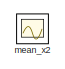
[diagram: root canvas - part 1/6, top left region]
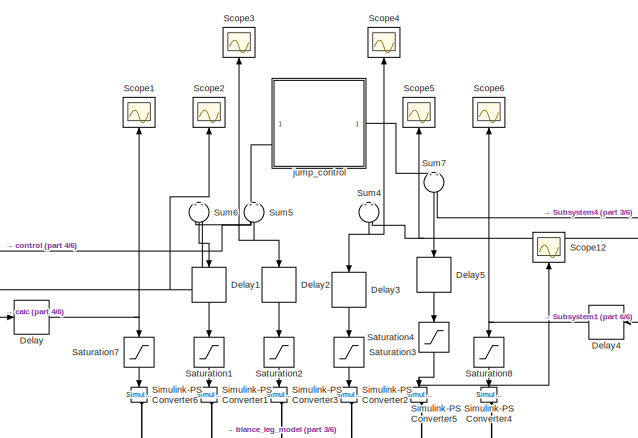
[diagram: root canvas - part 2/6, central region]
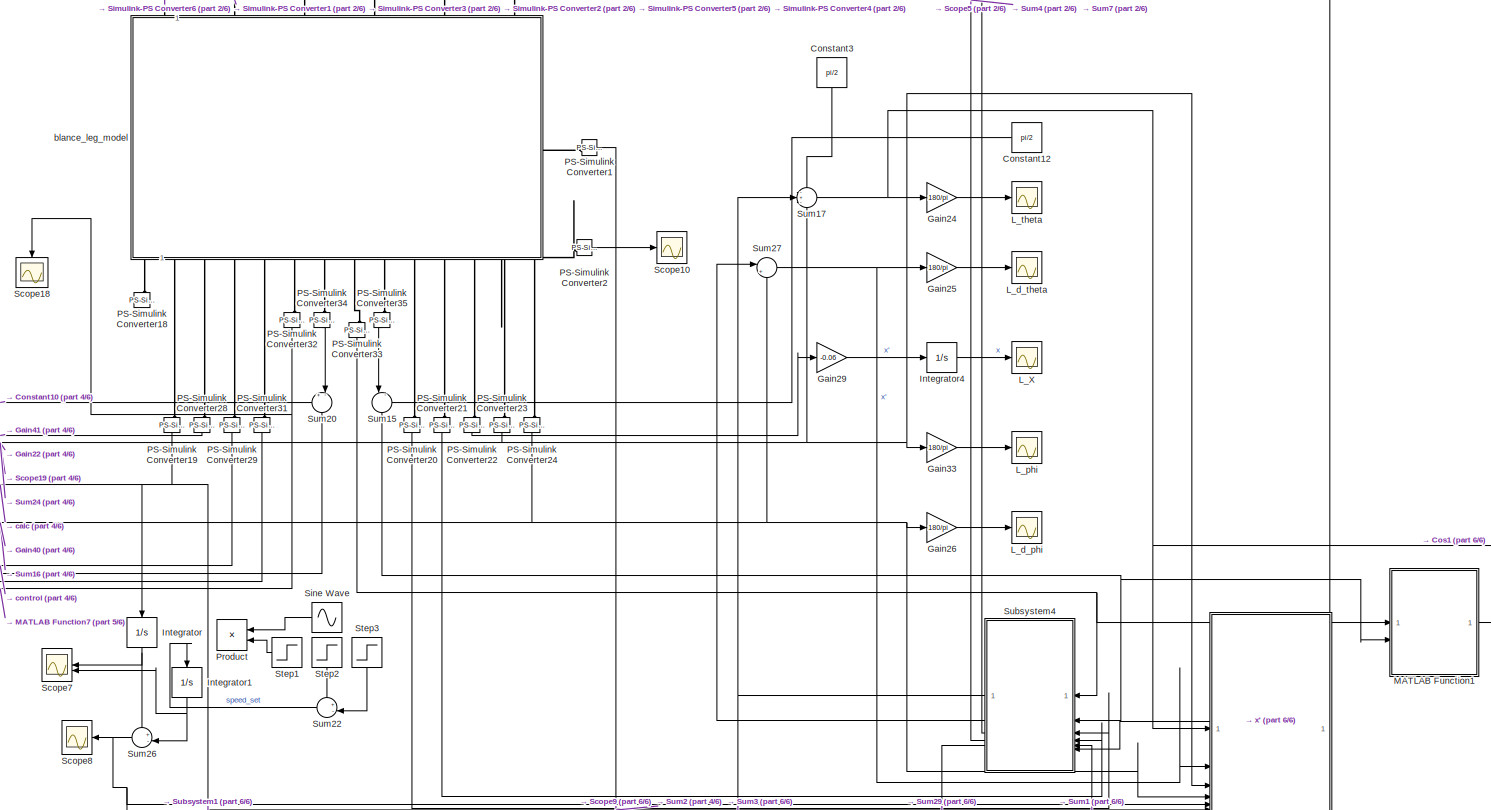
[diagram: root canvas - part 3/6, middle right region]
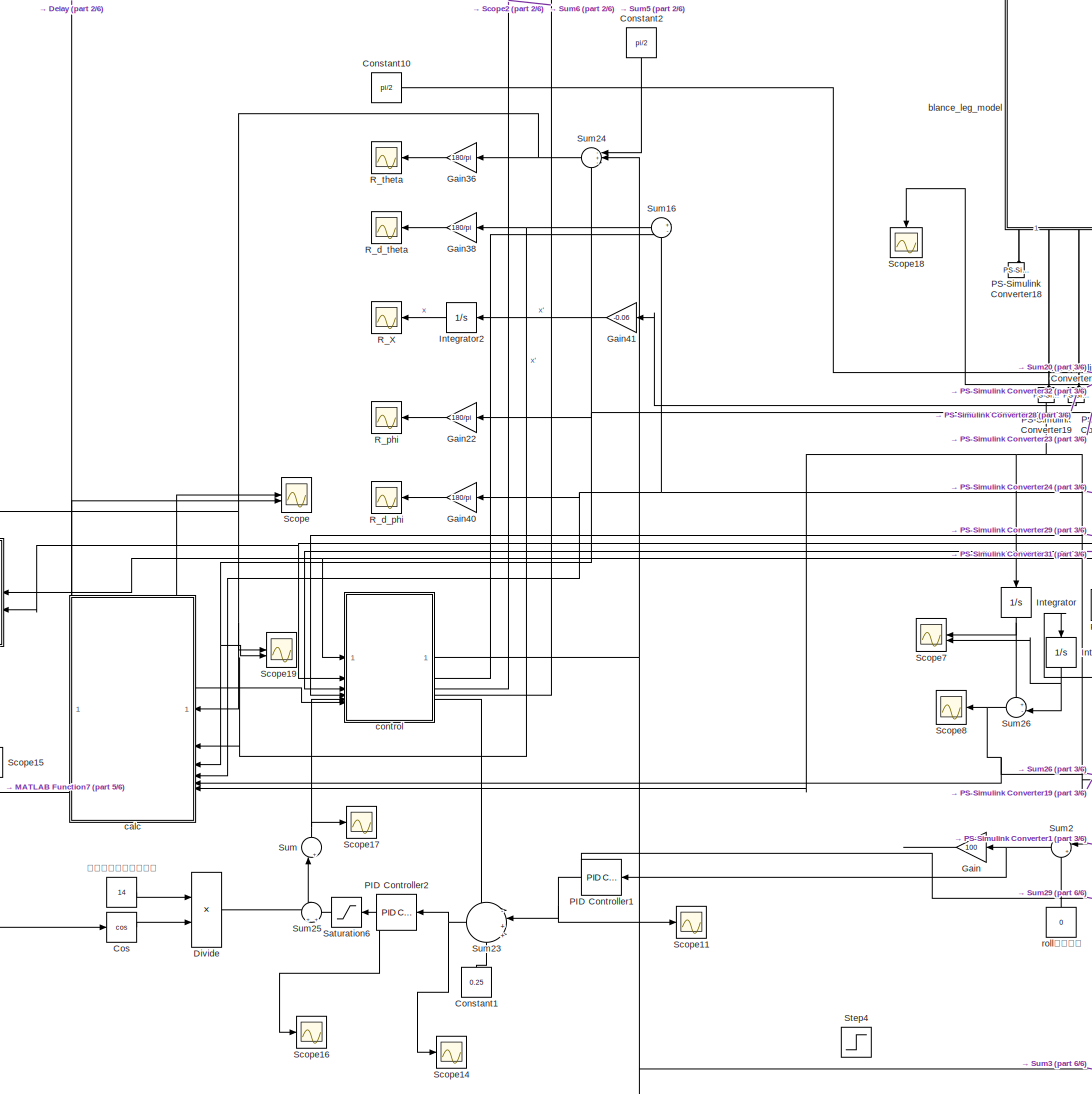
[diagram: root canvas - part 4/6, bottom center region]
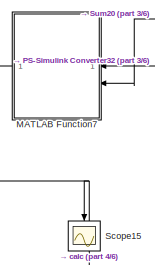
[diagram: root canvas - part 5/6, bottom left region]
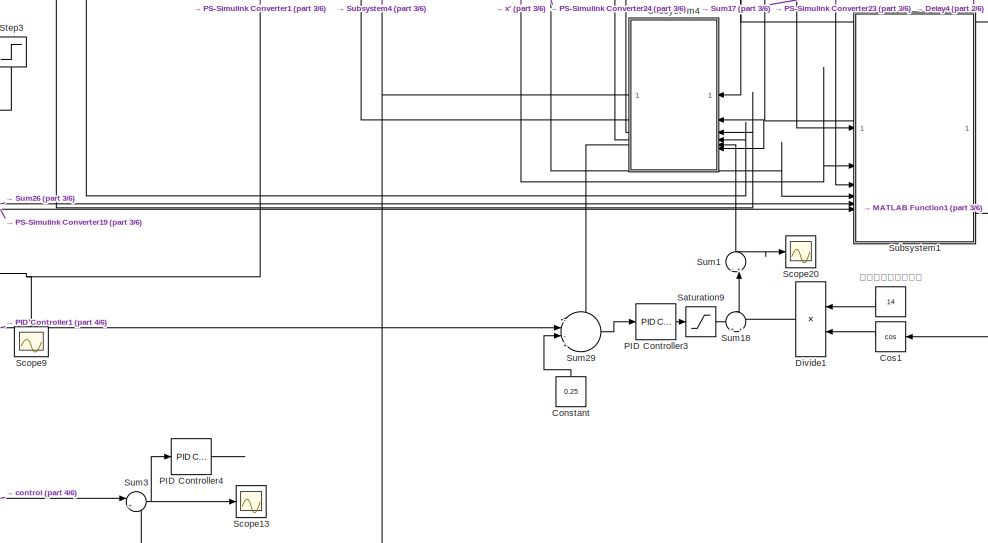
[diagram: root canvas - part 6/6, bottom right region]
MODEL slx_1de18f6d7964
KIND model
CONFIG AbsTol = auto
CONFIG EnableMultiTasking = off
CONFIG FixedStep =  0.00001
CONFIG MaxStep = 0.5
CONFIG MinStep = auto
CONFIG RelTol = 1e-3
CONFIG SampleTimeConstraint = Unconstrained
CONFIG SolverName = FixedStepAuto
CONFIG StartTime = 0.0
CONFIG StopTime = 10
BLOCK [Constant] Constant
  NameLocation = right
  Value = 0.25
BLOCK [Constant] Constant1
  NameLocation = right
  Value = 0.25
BLOCK [Constant] Constant10
  Value = pi/2
BLOCK [Constant] Constant12
  NameLocation = top
  Value = pi/2
BLOCK [Constant] Constant2
  NameLocation = left
  Value = pi/2
BLOCK [Constant] Constant3
  NameLocation = left
  Value = pi/2
BLOCK [Trigonometry] Cos
  Operator = cos
BLOCK [Trigonometry] Cos1
  NameLocation = top
  Operator = cos
BLOCK [Delay] Delay
  DelayLength = 1
  InitialCondition = 0
  InputPortMap = u0
BLOCK [Delay] Delay1
  DelayLength = 1
  InitialCondition = 0
  InputPortMap = u0
  NameLocation = left
BLOCK [Delay] Delay2
  DelayLength = 1
  InitialCondition = 0
  InputPortMap = u0
  NameLocation = left
BLOCK [Delay] Delay3
  DelayLength = 1
  InitialCondition = 0
  InputPortMap = u0
  NameLocation = left
BLOCK [Delay] Delay4
  DelayLength = 1
  InitialCondition = 0
  InputPortMap = u0
  NameLocation = top
BLOCK [Delay] Delay5
  DelayLength = 1
  InitialCondition = 0
  InputPortMap = u0
  NameLocation = left
BLOCK [Product] Divide
  Inputs = **
BLOCK [Product] Divide1
  Inputs = **
  NameLocation = top
BLOCK [Gain] Gain
  Gain = 100
  NameLocation = top
BLOCK [Gain] Gain22
  Gain = 180/pi
  NameLocation = top
BLOCK [Gain] Gain24
  Gain = 180/pi
  NameLocation = top
BLOCK [Gain] Gain25
  Gain = 180/pi
  NameLocation = top
BLOCK [Gain] Gain26
  Gain = 180/pi
  NameLocation = top
BLOCK [Gain] Gain29
  Gain = -0.06
  NameLocation = top
BLOCK [Gain] Gain33
  Gain = 180/pi
  NameLocation = top
BLOCK [Gain] Gain36
  Gain = 180/pi
  NameLocation = top
BLOCK [Gain] Gain38
  Gain = 180/pi
  NameLocation = top
BLOCK [Gain] Gain40
  Gain = 180/pi
  NameLocation = top
BLOCK [Gain] Gain41
  Gain = -0.06
  NameLocation = top
BLOCK [Integrator] Integrator
  NameLocation = left
BLOCK [Integrator] Integrator1
  NameLocation = left
BLOCK [Integrator] Integrator2
  NameLocation = top
BLOCK [Integrator] Integrator4
  NameLocation = top
BLOCK [Scope] L_X
  Floating = off
  NameLocation = top
  NumInputPorts = 1
  ScopeSpecificationString = Simulink.scopes.TimeScopeBlockCfg('CurrentConfiguration', extmgr.ConfigurationSet(extmgr.Configuration('Core','General UI',true),extmgr.Configuration('Core','Source UI',true),extmgr.Configuration('Sources','WiredSimulink',true,'DataLoggingVariableName','ScopeData1'),extmgr.Configuration('Visuals','Time Domain',true,'SerializedDisplays',{struct('MinYLimReal','-0.86138','MaxYLimReal','7.75246','YLab...<+1478ch>
BLOCK [Scope] L_d_phi
  Floating = off
  NameLocation = top
  NumInputPorts = 1
  ScopeSpecificationString = Simulink.scopes.TimeScopeBlockCfg('CurrentConfiguration', extmgr.ConfigurationSet(extmgr.Configuration('Core','General UI',true),extmgr.Configuration('Core','Source UI',true),extmgr.Configuration('Sources','WiredSimulink',true,'DataLoggingVariableName','ScopeData2'),extmgr.Configuration('Visuals','Time Domain',true,'SerializedDisplays',{struct('MinYLimReal','-7.35816','MaxYLimReal','0.81757','YLab...<+2064ch>
BLOCK [Scope] L_d_theta
  Floating = off
  NameLocation = top
  NumInputPorts = 1
  ScopeSpecificationString = Simulink.scopes.TimeScopeBlockCfg('CurrentConfiguration', extmgr.ConfigurationSet(extmgr.Configuration('Core','General UI',true),extmgr.Configuration('Core','Source UI',true),extmgr.Configuration('Sources','WiredSimulink',true,'DataLoggingVariableName','ScopeData3'),extmgr.Configuration('Visuals','Time Domain',true,'SerializedDisplays',{struct('MinYLimReal','-51.86845','MaxYLimReal','175.83384','Y...<+1403ch>
BLOCK [Scope] L_phi
  Floating = off
  NameLocation = top
  NumInputPorts = 1
  ScopeSpecificationString = Simulink.scopes.TimeScopeBlockCfg('CurrentConfiguration', extmgr.ConfigurationSet(extmgr.Configuration('Core','General UI',true),extmgr.Configuration('Core','Source UI',true),extmgr.Configuration('Sources','WiredSimulink',true,'DataLoggingVariableName','ScopeData4'),extmgr.Configuration('Visuals','Time Domain',true,'SerializedDisplays',{struct('MinYLimReal','-13.84408','MaxYLimReal','10.68796','YL...<+1671ch>
BLOCK [Scope] L_theta
  Floating = off
  NameLocation = top
  NumInputPorts = 1
  ScopeSpecificationString = Simulink.scopes.TimeScopeBlockCfg('CurrentConfiguration', extmgr.ConfigurationSet(extmgr.Configuration('Core','General UI',true),extmgr.Configuration('Core','Source UI',true),extmgr.Configuration('Sources','WiredSimulink',true,'DataLoggingVariableName','ScopeData5'),extmgr.Configuration('Visuals','Time Domain',true,'SerializedDisplays',{struct('MinYLimReal','-343.93398','MaxYLimReal','869.70014','...<+1558ch>
BLOCK [SubSystem] MATLAB Function1
  ErrorFcn = Stateflow.Translate.translate
  LibrarySourceBlock = simulink/User-Defined\nFunctions/MATLAB Function
  PermitHierarchicalResolution = ExplicitOnly
  SFBlockType = MATLAB Function
  TreatAsAtomicUnit = on
BLOCK [Demux] MATLAB Function1/ Demux 
  Outputs = 1
BLOCK [S-Function] MATLAB Function1/ SFunction 
  EnableBusSupport = on
  FunctionName = sf_sfun
  PortCounts = [2 2]
  SFcnIsStateOwnerBlock = off
  SFunctionDeploymentMode = off
  Tag = Stateflow S-Function 32
BLOCK [Terminator] MATLAB Function1/ Terminator 
BLOCK [Outport] MATLAB Function1/L0
BLOCK [Inport] MATLAB Function1/phi1
BLOCK [Inport] MATLAB Function1/phi4
  Port = 2
BLOCK [SubSystem] MATLAB Function7
  ErrorFcn = Stateflow.Translate.translate
  LibrarySourceBlock = simulink/User-Defined\nFunctions/MATLAB Function
  NameLocation = top
  PermitHierarchicalResolution = ExplicitOnly
  SFBlockType = MATLAB Function
  TreatAsAtomicUnit = on
BLOCK [Demux] MATLAB Function7/ Demux 
  Outputs = 1
BLOCK [S-Function] MATLAB Function7/ SFunction 
  EnableBusSupport = on
  FunctionName = sf_sfun
  PortCounts = [2 2]
  SFcnIsStateOwnerBlock = off
  SFunctionDeploymentMode = off
  Tag = Stateflow S-Function 19
BLOCK [Terminator] MATLAB Function7/ Terminator 
BLOCK [Outport] MATLAB Function7/L0
BLOCK [Inport] MATLAB Function7/phi1
BLOCK [Inport] MATLAB Function7/phi4
  Port = 2
BLOCK [Reference] PID Controller1  REF=slpidlib/PID Controller
  LibrarySourceBlock = simulink/Continuous/PID Controller
  NameLocation = top
  SourceBlock = slpidlib/PID Controller
  SourceType = PID 1dof
BLOCK [Reference] PID Controller2  REF=slpidlib/PID Controller
  LibrarySourceBlock = simulink/Continuous/PID Controller
  NameLocation = top
  SourceBlock = slpidlib/PID Controller
  SourceType = PID 1dof
BLOCK [Reference] PID Controller3  REF=slpidlib/PID Controller
  LibrarySourceBlock = simulink/Continuous/PID Controller
  NameLocation = top
  SourceBlock = slpidlib/PID Controller
  SourceType = PID 1dof
BLOCK [Reference] PID Controller4  REF=slpidlib/PID Controller
  LibrarySourceBlock = simulink/Continuous/PID Controller
  NameLocation = top
  SourceBlock = slpidlib/PID Controller
  SourceType = PID 1dof
BLOCK [Reference] PS-Simulink Converter1  REF=nesl_utility/PS-Simulink
Converter
  SourceBlock = nesl_utility/PS-Simulink\nConverter
  SourceType = PS-Simulink\nConverter
BLOCK [Reference] PS-Simulink Converter18  REF=nesl_utility/PS-Simulink
Converter
  NameLocation = left
  SourceBlock = nesl_utility/PS-Simulink\nConverter
  SourceType = PS-Simulink\nConverter
BLOCK [Reference] PS-Simulink Converter19  REF=nesl_utility/PS-Simulink
Converter
  NameLocation = left
  SourceBlock = nesl_utility/PS-Simulink\nConverter
  SourceType = PS-Simulink\nConverter
BLOCK [Reference] PS-Simulink Converter2  REF=nesl_utility/PS-Simulink
Converter
  SourceBlock = nesl_utility/PS-Simulink\nConverter
  SourceType = PS-Simulink\nConverter
BLOCK [Reference] PS-Simulink Converter20  REF=nesl_utility/PS-Simulink
Converter
  NameLocation = left
  SourceBlock = nesl_utility/PS-Simulink\nConverter
  SourceType = PS-Simulink\nConverter
BLOCK [Reference] PS-Simulink Converter21  REF=nesl_utility/PS-Simulink
Converter
  NameLocation = left
  SourceBlock = nesl_utility/PS-Simulink\nConverter
  SourceType = PS-Simulink\nConverter
BLOCK [Reference] PS-Simulink Converter22  REF=nesl_utility/PS-Simulink
Converter
  NameLocation = left
  SourceBlock = nesl_utility/PS-Simulink\nConverter
  SourceType = PS-Simulink\nConverter
BLOCK [Reference] PS-Simulink Converter23  REF=nesl_utility/PS-Simulink
Converter
  NameLocation = left
  SourceBlock = nesl_utility/PS-Simulink\nConverter
  SourceType = PS-Simulink\nConverter
BLOCK [Reference] PS-Simulink Converter24  REF=nesl_utility/PS-Simulink
Converter
  NameLocation = left
  SourceBlock = nesl_utility/PS-Simulink\nConverter
  SourceType = PS-Simulink\nConverter
BLOCK [Reference] PS-Simulink Converter28  REF=nesl_utility/PS-Simulink
Converter
  NameLocation = left
  SourceBlock = nesl_utility/PS-Simulink\nConverter
  SourceType = PS-Simulink\nConverter
BLOCK [Reference] PS-Simulink Converter29  REF=nesl_utility/PS-Simulink
Converter
  NameLocation = left
  SourceBlock = nesl_utility/PS-Simulink\nConverter
  SourceType = PS-Simulink\nConverter
BLOCK [Reference] PS-Simulink Converter31  REF=nesl_utility/PS-Simulink
Converter
  NameLocation = left
  SourceBlock = nesl_utility/PS-Simulink\nConverter
  SourceType = PS-Simulink\nConverter
BLOCK [Reference] PS-Simulink Converter32  REF=nesl_utility/PS-Simulink
Converter
  NameLocation = left
  SourceBlock = nesl_utility/PS-Simulink\nConverter
  SourceType = PS-Simulink\nConverter
BLOCK [Reference] PS-Simulink Converter33  REF=nesl_utility/PS-Simulink
Converter
  NameLocation = left
  SourceBlock = nesl_utility/PS-Simulink\nConverter
  SourceType = PS-Simulink\nConverter
BLOCK [Reference] PS-Simulink Converter34  REF=nesl_utility/PS-Simulink
Converter
  NameLocation = left
  SourceBlock = nesl_utility/PS-Simulink\nConverter
  SourceType = PS-Simulink\nConverter
BLOCK [Reference] PS-Simulink Converter35  REF=nesl_utility/PS-Simulink
Converter
  NameLocation = left
  SourceBlock = nesl_utility/PS-Simulink\nConverter
  SourceType = PS-Simulink\nConverter
BLOCK [Product] Product
  NameLocation = top
BLOCK [Scope] R_X
  Floating = off
  NameLocation = top
  NumInputPorts = 1
  ScopeSpecificationString = Simulink.scopes.TimeScopeBlockCfg('CurrentConfiguration', extmgr.ConfigurationSet(extmgr.Configuration('Core','General UI',true),extmgr.Configuration('Core','Source UI',true),extmgr.Configuration('Sources','WiredSimulink',true,'DataLoggingVariableName','ScopeData6'),extmgr.Configuration('Visuals','Time Domain',true,'SerializedDisplays',{struct('MinYLimReal','-0.14563','MaxYLimReal','1.31067','YLab...<+1477ch>
BLOCK [Scope] R_d_phi
  Floating = off
  NameLocation = top
  NumInputPorts = 1
  ScopeSpecificationString = Simulink.scopes.TimeScopeBlockCfg('CurrentConfiguration', extmgr.ConfigurationSet(extmgr.Configuration('Core','General UI',true),extmgr.Configuration('Core','Source UI',true),extmgr.Configuration('Sources','WiredSimulink',true,'DataLoggingVariableName','ScopeData7'),extmgr.Configuration('Visuals','Time Domain',true,'SerializedDisplays',{struct('MinYLimReal','-69.37884','MaxYLimReal','37.42618','YL...<+2289ch>
BLOCK [Scope] R_d_theta
  Floating = off
  NameLocation = top
  NumInputPorts = 1
  ScopeSpecificationString = Simulink.scopes.TimeScopeBlockCfg('CurrentConfiguration', extmgr.ConfigurationSet(extmgr.Configuration('Core','General UI',true),extmgr.Configuration('Core','Source UI',true),extmgr.Configuration('Sources','WiredSimulink',true,'DataLoggingVariableName','ScopeData8'),extmgr.Configuration('Visuals','Time Domain',true,'SerializedDisplays',{struct('MinYLimReal','-327.33628','MaxYLimReal','404.01337','...<+1538ch>
BLOCK [Scope] R_phi
  Floating = off
  NameLocation = top
  NumInputPorts = 1
  ScopeSpecificationString = Simulink.scopes.TimeScopeBlockCfg('CurrentConfiguration', extmgr.ConfigurationSet(extmgr.Configuration('Core','General UI',true),extmgr.Configuration('Core','Source UI',true),extmgr.Configuration('Sources','WiredSimulink',true,'DataLoggingVariableName','ScopeData9'),extmgr.Configuration('Visuals','Time Domain',true,'SerializedDisplays',{struct('MinYLimReal','-0.91716','MaxYLimReal','0.10191','YLab...<+1670ch>
BLOCK [Scope] R_theta
  Floating = off
  NameLocation = top
  NumInputPorts = 1
  ScopeSpecificationString = Simulink.scopes.TimeScopeBlockCfg('CurrentConfiguration', extmgr.ConfigurationSet(extmgr.Configuration('Core','General UI',true),extmgr.Configuration('Core','Source UI',true),extmgr.Configuration('Sources','WiredSimulink',true,'DataLoggingVariableName','ScopeData10'),extmgr.Configuration('Visuals','Time Domain',true,'SerializedDisplays',{struct('MinYLimReal','-17.03253','MaxYLimReal','15.44205','Y...<+1537ch>
BLOCK [Saturate] Saturation1
  LowerLimit = -25
  NameLocation = left
  UpperLimit = 25
BLOCK [Saturate] Saturation2
  LowerLimit = -25
  NameLocation = left
  UpperLimit = 25
BLOCK [Saturate] Saturation3
  LowerLimit = -25
  NameLocation = left
  UpperLimit = 25
BLOCK [Saturate] Saturation4
  LowerLimit = -25
  NameLocation = left
  UpperLimit = 25
BLOCK [Saturate] Saturation6
  LowerLimit = -20
  NameLocation = top
  UpperLimit = 20
BLOCK [Saturate] Saturation7
  LowerLimit = -9
  NameLocation = left
  UpperLimit = 9
BLOCK [Saturate] Saturation8
  LowerLimit = -9
  NameLocation = left
  UpperLimit = 9
BLOCK [Saturate] Saturation9
  LowerLimit = -20
  UpperLimit = 20
BLOCK [Scope] Scope
  Floating = off
  NumInputPorts = 2
  ScopeSpecificationString = Simulink.scopes.TimeScopeBlockCfg('CurrentConfiguration', extmgr.ConfigurationSet(extmgr.Configuration('Core','General UI',true),extmgr.Configuration('Core','Source UI',true),extmgr.Configuration('Sources','WiredSimulink',true,'DataLoggingVariableName','ScopeData1'),extmgr.Configuration('Visuals','Time Domain',true,'SerializedDisplays',{struct('MinYLimReal','-17.88229','MaxYLimReal','12.56105','YL...<+1530ch>
BLOCK [Scope] Scope1
  Floating = off
  NameLocation = right
  NumInputPorts = 1
  ScopeSpecificationString = Simulink.scopes.TimeScopeBlockCfg('CurrentConfiguration', extmgr.ConfigurationSet(extmgr.Configuration('Core','General UI',true),extmgr.Configuration('Core','Source UI',true),extmgr.Configuration('Sources','WiredSimulink',true,'DataLoggingVariableName','ScopeData11'),extmgr.Configuration('Visuals','Time Domain',true,'SerializedDisplays',{struct('MinYLimReal','-34.22772','MaxYLimReal','26.01276','Y...<+1586ch>
BLOCK [Scope] Scope10
  Floating = off
  NumInputPorts = 1
  ScopeSpecificationString = Simulink.scopes.TimeScopeBlockCfg('CurrentConfiguration', extmgr.ConfigurationSet(extmgr.Configuration('Core','General UI',true),extmgr.Configuration('Core','Source UI',true),extmgr.Configuration('Sources','WiredSimulink',true,'DataLoggingVariableName','ScopeData3'),extmgr.Configuration('Visuals','Time Domain',true,'SerializedDisplays',{struct('MinYLimReal','-3.125','MaxYLimReal','28.125','YLabelR...<+1462ch>
BLOCK [Scope] Scope11
  Floating = off
  NumInputPorts = 1
  ScopeSpecificationString = Simulink.scopes.TimeScopeBlockCfg('CurrentConfiguration', extmgr.ConfigurationSet(extmgr.Configuration('Core','General UI',true),extmgr.Configuration('Core','Source UI',true),extmgr.Configuration('Sources','WiredSimulink',true,'DataLoggingVariableName','ScopeData1'),extmgr.Configuration('Visuals','Time Domain',true,'SerializedDisplays',{struct('MinYLimReal','-0.06547','MaxYLimReal','0.04513','YLab...<+1540ch>
BLOCK [Scope] Scope12
  Floating = off
  NameLocation = right
  NumInputPorts = 1
  ScopeSpecificationString = Simulink.scopes.TimeScopeBlockCfg('CurrentConfiguration', extmgr.ConfigurationSet(extmgr.Configuration('Core','General UI',true),extmgr.Configuration('Core','Source UI',true),extmgr.Configuration('Sources','WiredSimulink',true,'DataLoggingVariableName','ScopeData1'),extmgr.Configuration('Visuals','Time Domain',true,'SerializedDisplays',{struct('MinYLimReal','-1.00000','MaxYLimReal','1.00000','YLab...<+1514ch>
BLOCK [Scope] Scope13
  Floating = off
  NumInputPorts = 1
  ScopeSpecificationString = Simulink.scopes.TimeScopeBlockCfg('CurrentConfiguration', extmgr.ConfigurationSet(extmgr.Configuration('Core','General UI',true),extmgr.Configuration('Core','Source UI',true),extmgr.Configuration('Sources','WiredSimulink',true,'DataLoggingVariableName','ScopeData2'),extmgr.Configuration('Visuals','Time Domain',true,'SerializedDisplays',{struct('MinYLimReal','-0.05967','MaxYLimReal','0.05303','YLab...<+1481ch>
BLOCK [Scope] Scope14
  Floating = off
  NumInputPorts = 1
  ScopeSpecificationString = Simulink.scopes.TimeScopeBlockCfg('CurrentConfiguration', extmgr.ConfigurationSet(extmgr.Configuration('Core','General UI',true),extmgr.Configuration('Core','Source UI',true),extmgr.Configuration('Sources','WiredSimulink',true,'DataLoggingVariableName','ScopeData3'),extmgr.Configuration('Visuals','Time Domain',true,'SerializedDisplays',{struct('MinYLimReal','-28.01191','MaxYLimReal','22.72731','YL...<+1558ch>
BLOCK [Scope] Scope15
  Floating = off
  NameLocation = left
  NumInputPorts = 1
  ScopeSpecificationString = Simulink.scopes.TimeScopeBlockCfg('CurrentConfiguration', extmgr.ConfigurationSet(extmgr.Configuration('Core','General UI',true),extmgr.Configuration('Core','Source UI',true),extmgr.Configuration('Sources','WiredSimulink',true,'DataLoggingVariableName','ScopeData1'),extmgr.Configuration('Visuals','Time Domain',true,'SerializedDisplays',{struct('MinYLimReal','0.07818','MaxYLimReal','0.14449','YLabe...<+1576ch>
BLOCK [Scope] Scope16
  Floating = off
  NumInputPorts = 1
  ScopeSpecificationString = Simulink.scopes.TimeScopeBlockCfg('CurrentConfiguration', extmgr.ConfigurationSet(extmgr.Configuration('Core','General UI',true),extmgr.Configuration('Core','Source UI',true),extmgr.Configuration('Sources','WiredSimulink',true,'DataLoggingVariableName','ScopeData1'),extmgr.Configuration('Visuals','Time Domain',true,'SerializedDisplays',{struct('MinYLimReal','-22.58194','MaxYLimReal','13.29151','YL...<+1546ch>
BLOCK [Scope] Scope17
  Floating = off
  NumInputPorts = 1
  ScopeSpecificationString = Simulink.scopes.TimeScopeBlockCfg('CurrentConfiguration', extmgr.ConfigurationSet(extmgr.Configuration('Core','General UI',true),extmgr.Configuration('Core','Source UI',true),extmgr.Configuration('Sources','WiredSimulink',true,'DataLoggingVariableName','ScopeData2'),extmgr.Configuration('Visuals','Time Domain',true,'SerializedDisplays',{struct('MinYLimReal','-50.37539','MaxYLimReal','29.54174','YL...<+1604ch>
BLOCK [Scope] Scope18
  Floating = off
  NameLocation = left
  NumInputPorts = 1
  ScopeSpecificationString = Simulink.scopes.TimeScopeBlockCfg('CurrentConfiguration', extmgr.ConfigurationSet(extmgr.Configuration('Core','General UI',true),extmgr.Configuration('Core','Source UI',true),extmgr.Configuration('Sources','WiredSimulink',true,'DataLoggingVariableName','ScopeData1'),extmgr.Configuration('Visuals','Time Domain',true,'SerializedDisplays',{struct('MinYLimReal','-3.125','MaxYLimReal','0.6269','YLabelR...<+1534ch>
BLOCK [Scope] Scope19
  Floating = off
  NumInputPorts = 2
  ScopeSpecificationString = Simulink.scopes.TimeScopeBlockCfg('CurrentConfiguration', extmgr.ConfigurationSet(extmgr.Configuration('Core','General UI',true),extmgr.Configuration('Core','Source UI',true),extmgr.Configuration('Sources','WiredSimulink',true,'DataLoggingVariableName','ScopeData1'),extmgr.Configuration('Visuals','Time Domain',true,'SerializedDisplays',{struct('MinYLimReal','-0.73711','MaxYLimReal','0.6373','YLabe...<+1541ch>
BLOCK [Scope] Scope2
  Floating = off
  NameLocation = right
  NumInputPorts = 1
  ScopeSpecificationString = Simulink.scopes.TimeScopeBlockCfg('CurrentConfiguration', extmgr.ConfigurationSet(extmgr.Configuration('Core','General UI',true),extmgr.Configuration('Core','Source UI',true),extmgr.Configuration('Sources','WiredSimulink',true,'DataLoggingVariableName','ScopeData12'),extmgr.Configuration('Visuals','Time Domain',true,'SerializedDisplays',{struct('MinYLimReal','-149.77797','MaxYLimReal','177.93387',...<+1566ch>
BLOCK [Scope] Scope20
  Floating = off
  NumInputPorts = 1
  ScopeSpecificationString = Simulink.scopes.TimeScopeBlockCfg('CurrentConfiguration', extmgr.ConfigurationSet(extmgr.Configuration('Core','General UI',true),extmgr.Configuration('Core','Source UI',true),extmgr.Configuration('Sources','WiredSimulink',true,'DataLoggingVariableName','ScopeData1'),extmgr.Configuration('Visuals','Time Domain',true,'SerializedDisplays',{struct('MinYLimReal','-93.33789','MaxYLimReal','35.10493','YL...<+1592ch>
BLOCK [Scope] Scope3
  Floating = off
  NameLocation = right
  NumInputPorts = 1
  ScopeSpecificationString = Simulink.scopes.TimeScopeBlockCfg('CurrentConfiguration', extmgr.ConfigurationSet(extmgr.Configuration('Core','General UI',true),extmgr.Configuration('Core','Source UI',true),extmgr.Configuration('Sources','WiredSimulink',true,'DataLoggingVariableName','ScopeData13'),extmgr.Configuration('Visuals','Time Domain',true,'SerializedDisplays',{struct('MinYLimReal','-22.35884','MaxYLimReal','24.15719','Y...<+1547ch>
BLOCK [Scope] Scope4
  Floating = off
  NameLocation = right
  NumInputPorts = 1
  ScopeSpecificationString = Simulink.scopes.TimeScopeBlockCfg('CurrentConfiguration', extmgr.ConfigurationSet(extmgr.Configuration('Core','General UI',true),extmgr.Configuration('Core','Source UI',true),extmgr.Configuration('Sources','WiredSimulink',true,'DataLoggingVariableName','ScopeData14'),extmgr.Configuration('Visuals','Time Domain',true,'SerializedDisplays',{struct('MinYLimReal','-83.33336','MaxYLimReal','30.48207','Y...<+1571ch>
BLOCK [Scope] Scope5
  Floating = off
  NameLocation = right
  NumInputPorts = 1
  ScopeSpecificationString = Simulink.scopes.TimeScopeBlockCfg('CurrentConfiguration', extmgr.ConfigurationSet(extmgr.Configuration('Core','General UI',true),extmgr.Configuration('Core','Source UI',true),extmgr.Configuration('Sources','WiredSimulink',true,'DataLoggingVariableName','ScopeData15'),extmgr.Configuration('Visuals','Time Domain',true,'SerializedDisplays',{struct('MinYLimReal','-203.80904','MaxYLimReal','368.81474',...<+1537ch>
BLOCK [Scope] Scope6
  Floating = off
  NameLocation = right
  NumInputPorts = 1
  ScopeSpecificationString = Simulink.scopes.TimeScopeBlockCfg('CurrentConfiguration', extmgr.ConfigurationSet(extmgr.Configuration('Core','General UI',true),extmgr.Configuration('Core','Source UI',true),extmgr.Configuration('Sources','WiredSimulink',true,'DataLoggingVariableName','ScopeData16'),extmgr.Configuration('Visuals','Time Domain',true,'SerializedDisplays',{struct('MinYLimReal','-182.4754','MaxYLimReal','46.46373','Y...<+1592ch>
BLOCK [Scope] Scope7
  Floating = off
  NameLocation = top
  NumInputPorts = 2
  ScopeSpecificationString = Simulink.scopes.TimeScopeBlockCfg('CurrentConfiguration', extmgr.ConfigurationSet(extmgr.Configuration('Core','General UI',true),extmgr.Configuration('Core','Source UI',true),extmgr.Configuration('Sources','WiredSimulink',true,'DataLoggingVariableName','ScopeData1'),extmgr.Configuration('Visuals','Time Domain',true,'SerializedDisplays',{struct('MinYLimReal','-0.15467','MaxYLimReal','0.12458','YLab...<+1557ch>
BLOCK [Scope] Scope8
  Floating = off
  NameLocation = top
  NumInputPorts = 1
  ScopeSpecificationString = Simulink.scopes.TimeScopeBlockCfg('CurrentConfiguration', extmgr.ConfigurationSet(extmgr.Configuration('Core','General UI',true),extmgr.Configuration('Core','Source UI',true),extmgr.Configuration('Sources','WiredSimulink',true,'DataLoggingVariableName','ScopeData1'),extmgr.Configuration('Visuals','Time Domain',true,'SerializedDisplays',{struct('MinYLimReal','-5.45917','MaxYLimReal','0.60729','YLab...<+1568ch>
BLOCK [Scope] Scope9
  Floating = off
  NameLocation = left
  NumInputPorts = 1
  ScopeSpecificationString = Simulink.scopes.TimeScopeBlockCfg('CurrentConfiguration', extmgr.ConfigurationSet(extmgr.Configuration('Core','General UI',true),extmgr.Configuration('Core','Source UI',true),extmgr.Configuration('Sources','WiredSimulink',true,'DataLoggingVariableName','ScopeData2'),extmgr.Configuration('Visuals','Time Domain',true,'SerializedDisplays',{struct('MinYLimReal','-0.08435','MaxYLimReal','0.66144','YLab...<+1569ch>
BLOCK [Reference] Simulink-PS Converter1  REF=nesl_utility/Simulink-PS
Converter
  NameLocation = left
  SourceBlock = nesl_utility/Simulink-PS\nConverter
  SourceType = Simulink-PS\nConverter
BLOCK [Reference] Simulink-PS Converter2  REF=nesl_utility/Simulink-PS
Converter
  NameLocation = left
  SourceBlock = nesl_utility/Simulink-PS\nConverter
  SourceType = Simulink-PS\nConverter
BLOCK [Reference] Simulink-PS Converter3  REF=nesl_utility/Simulink-PS
Converter
  NameLocation = left
  SourceBlock = nesl_utility/Simulink-PS\nConverter
  SourceType = Simulink-PS\nConverter
BLOCK [Reference] Simulink-PS Converter4  REF=nesl_utility/Simulink-PS
Converter
  NameLocation = left
  SourceBlock = nesl_utility/Simulink-PS\nConverter
  SourceType = Simulink-PS\nConverter
BLOCK [Reference] Simulink-PS Converter5  REF=nesl_utility/Simulink-PS
Converter
  NameLocation = left
  SourceBlock = nesl_utility/Simulink-PS\nConverter
  SourceType = Simulink-PS\nConverter
BLOCK [Reference] Simulink-PS Converter6  REF=nesl_utility/Simulink-PS
Converter
  NameLocation = left
  SourceBlock = nesl_utility/Simulink-PS\nConverter
  SourceType = Simulink-PS\nConverter
BLOCK [Sin] Sine Wave
  Amplitude = 2
  Frequency = 4
  NameLocation = top
  SampleTime = 0
BLOCK [Step] Step1
  After = 0
  Before = 1
  NameLocation = top
  SampleTime = 0
  Time = 10
BLOCK [Step] Step2
  After = 2.5
  NameLocation = left
  SampleTime = 0
  Time = 3
BLOCK [Step] Step3
  After = 2.5
  NameLocation = left
  SampleTime = 0
  Time = 10
BLOCK [Step] Step4
  After = 0.1
  NameLocation = right
  SampleTime = 0
  Time = 2
BLOCK [SubSystem] Subsystem1
  PortSchema = {"entries":[{"content":{"sides":[{"content":{"connectorIds":["In1","In2","In3","In4","In5","In6"]},"type":"ConnectorPlacement.EquallySpacedRectSide","uuid":"055cb80c-cd03-4a8d-aef8-6b3df8c72d3f"},{"content":{"connectorIds":["In7"],"side":"RIGHT"},"type":"ConnectorPlacement.EquallySpacedRectSide","uuid":"5756fad1-d70f-4a11-a5af-d2f67bfb0d7e"},{"content":{"connectorIds":["Out1","Out2"],"side":"TOP"}...<+282ch>
BLOCK [Constant] Subsystem1/Constant
  NameLocation = top
  Value = a11
BLOCK [Constant] Subsystem1/Constant1
  NameLocation = top
  Value = a12
BLOCK [Constant] Subsystem1/Constant10
  NameLocation = top
  Value = a25
BLOCK [Constant] Subsystem1/Constant11
  NameLocation = top
  Value = a26
BLOCK [Constant] Subsystem1/Constant2
  NameLocation = top
  Value = a13
BLOCK [Constant] Subsystem1/Constant3
  NameLocation = top
  Value = a14
BLOCK [Constant] Subsystem1/Constant4
  NameLocation = top
  Value = a15
BLOCK [Constant] Subsystem1/Constant5
  NameLocation = top
  Value = a16
BLOCK [Constant] Subsystem1/Constant6
  NameLocation = top
  Value = a21
BLOCK [Constant] Subsystem1/Constant7
  NameLocation = top
  Value = a22
BLOCK [Constant] Subsystem1/Constant8
  NameLocation = top
  Value = a23
BLOCK [Constant] Subsystem1/Constant9
  NameLocation = top
  Value = a24
BLOCK [Gain] Subsystem1/Gain36
  Gain = -1
  NameLocation = top
BLOCK [Gain] Subsystem1/Gain38
  Gain = -1
  NameLocation = top
BLOCK [Inport] Subsystem1/Length
  NameLocation = top
  Port = 7
BLOCK [SubSystem] Subsystem1/MATLAB Function1
  ErrorFcn = Stateflow.Translate.translate
  LibrarySourceBlock = simulink/User-Defined\nFunctions/MATLAB Function
  NameLocation = top
  PermitHierarchicalResolution = ExplicitOnly
  SFBlockType = MATLAB Function
  TreatAsAtomicUnit = on
BLOCK [Demux] Subsystem1/MATLAB Function1/ Demux 
  Outputs = 1
BLOCK [S-Function] Subsystem1/MATLAB Function1/ SFunction 
  EnableBusSupport = on
  FunctionName = sf_sfun
  PortCounts = [2 2]
  SFcnIsStateOwnerBlock = off
  SFunctionDeploymentMode = off
  Tag = Stateflow S-Function 20
BLOCK [Terminator] Subsystem1/MATLAB Function1/ Terminator 
BLOCK [Inport] Subsystem1/MATLAB Function1/a
BLOCK [Outport] Subsystem1/MATLAB Function1/k
BLOCK [Inport] Subsystem1/MATLAB Function1/length
  Port = 2
BLOCK [SubSystem] Subsystem1/MATLAB Function10
  ErrorFcn = Stateflow.Translate.translate
  LibrarySourceBlock = simulink/User-Defined\nFunctions/MATLAB Function
  NameLocation = top
  PermitHierarchicalResolution = ExplicitOnly
  SFBlockType = MATLAB Function
  TreatAsAtomicUnit = on
BLOCK [Demux] Subsystem1/MATLAB Function10/ Demux 
  Outputs = 1
BLOCK [S-Function] Subsystem1/MATLAB Function10/ SFunction 
  EnableBusSupport = on
  FunctionName = sf_sfun
  PortCounts = [2 2]
  SFcnIsStateOwnerBlock = off
  SFunctionDeploymentMode = off
  Tag = Stateflow S-Function 21
BLOCK [Terminator] Subsystem1/MATLAB Function10/ Terminator 
BLOCK [Inport] Subsystem1/MATLAB Function10/a
BLOCK [Outport] Subsystem1/MATLAB Function10/k
BLOCK [Inport] Subsystem1/MATLAB Function10/length
  Port = 2
BLOCK [SubSystem] Subsystem1/MATLAB Function11
  ErrorFcn = Stateflow.Translate.translate
  LibrarySourceBlock = simulink/User-Defined\nFunctions/MATLAB Function
  NameLocation = top
  PermitHierarchicalResolution = ExplicitOnly
  SFBlockType = MATLAB Function
  TreatAsAtomicUnit = on
BLOCK [Demux] Subsystem1/MATLAB Function11/ Demux 
  Outputs = 1
BLOCK [S-Function] Subsystem1/MATLAB Function11/ SFunction 
  EnableBusSupport = on
  FunctionName = sf_sfun
  PortCounts = [2 2]
  SFcnIsStateOwnerBlock = off
  SFunctionDeploymentMode = off
  Tag = Stateflow S-Function 22
BLOCK [Terminator] Subsystem1/MATLAB Function11/ Terminator 
BLOCK [Inport] Subsystem1/MATLAB Function11/a
BLOCK [Outport] Subsystem1/MATLAB Function11/k
BLOCK [Inport] Subsystem1/MATLAB Function11/length
  Port = 2
BLOCK [SubSystem] Subsystem1/MATLAB Function12
  ErrorFcn = Stateflow.Translate.translate
  LibrarySourceBlock = simulink/User-Defined\nFunctions/MATLAB Function
  NameLocation = top
  PermitHierarchicalResolution = ExplicitOnly
  SFBlockType = MATLAB Function
  TreatAsAtomicUnit = on
BLOCK [Demux] Subsystem1/MATLAB Function12/ Demux 
  Outputs = 1
BLOCK [S-Function] Subsystem1/MATLAB Function12/ SFunction 
  EnableBusSupport = on
  FunctionName = sf_sfun
  PortCounts = [2 2]
  SFcnIsStateOwnerBlock = off
  SFunctionDeploymentMode = off
  Tag = Stateflow S-Function 23
BLOCK [Terminator] Subsystem1/MATLAB Function12/ Terminator 
BLOCK [Inport] Subsystem1/MATLAB Function12/a
BLOCK [Outport] Subsystem1/MATLAB Function12/k
BLOCK [Inport] Subsystem1/MATLAB Function12/length
  Port = 2
BLOCK [SubSystem] Subsystem1/MATLAB Function2
  ErrorFcn = Stateflow.Translate.translate
  LibrarySourceBlock = simulink/User-Defined\nFunctions/MATLAB Function
  NameLocation = top
  PermitHierarchicalResolution = ExplicitOnly
  SFBlockType = MATLAB Function
  TreatAsAtomicUnit = on
BLOCK [Demux] Subsystem1/MATLAB Function2/ Demux 
  Outputs = 1
BLOCK [S-Function] Subsystem1/MATLAB Function2/ SFunction 
  EnableBusSupport = on
  FunctionName = sf_sfun
  PortCounts = [2 2]
  SFcnIsStateOwnerBlock = off
  SFunctionDeploymentMode = off
  Tag = Stateflow S-Function 24
BLOCK [Terminator] Subsystem1/MATLAB Function2/ Terminator 
BLOCK [Inport] Subsystem1/MATLAB Function2/a
BLOCK [Outport] Subsystem1/MATLAB Function2/k
BLOCK [Inport] Subsystem1/MATLAB Function2/length
  Port = 2
BLOCK [SubSystem] Subsystem1/MATLAB Function3
  ErrorFcn = Stateflow.Translate.translate
  LibrarySourceBlock = simulink/User-Defined\nFunctions/MATLAB Function
  NameLocation = top
  PermitHierarchicalResolution = ExplicitOnly
  SFBlockType = MATLAB Function
  TreatAsAtomicUnit = on
BLOCK [Demux] Subsystem1/MATLAB Function3/ Demux 
  Outputs = 1
BLOCK [S-Function] Subsystem1/MATLAB Function3/ SFunction 
  EnableBusSupport = on
  FunctionName = sf_sfun
  PortCounts = [2 2]
  SFcnIsStateOwnerBlock = off
  SFunctionDeploymentMode = off
  Tag = Stateflow S-Function 25
BLOCK [Terminator] Subsystem1/MATLAB Function3/ Terminator 
BLOCK [Inport] Subsystem1/MATLAB Function3/a
BLOCK [Outport] Subsystem1/MATLAB Function3/k
BLOCK [Inport] Subsystem1/MATLAB Function3/length
  Port = 2
BLOCK [SubSystem] Subsystem1/MATLAB Function4
  ErrorFcn = Stateflow.Translate.translate
  LibrarySourceBlock = simulink/User-Defined\nFunctions/MATLAB Function
  NameLocation = top
  PermitHierarchicalResolution = ExplicitOnly
  SFBlockType = MATLAB Function
  TreatAsAtomicUnit = on
BLOCK [Demux] Subsystem1/MATLAB Function4/ Demux 
  Outputs = 1
BLOCK [S-Function] Subsystem1/MATLAB Function4/ SFunction 
  EnableBusSupport = on
  FunctionName = sf_sfun
  PortCounts = [2 2]
  SFcnIsStateOwnerBlock = off
  SFunctionDeploymentMode = off
  Tag = Stateflow S-Function 26
BLOCK [Terminator] Subsystem1/MATLAB Function4/ Terminator 
BLOCK [Inport] Subsystem1/MATLAB Function4/a
BLOCK [Outport] Subsystem1/MATLAB Function4/k
BLOCK [Inport] Subsystem1/MATLAB Function4/length
  Port = 2
BLOCK [SubSystem] Subsystem1/MATLAB Function5
  ErrorFcn = Stateflow.Translate.translate
  LibrarySourceBlock = simulink/User-Defined\nFunctions/MATLAB Function
  NameLocation = top
  PermitHierarchicalResolution = ExplicitOnly
  SFBlockType = MATLAB Function
  TreatAsAtomicUnit = on
BLOCK [Demux] Subsystem1/MATLAB Function5/ Demux 
  Outputs = 1
BLOCK [S-Function] Subsystem1/MATLAB Function5/ SFunction 
  EnableBusSupport = on
  FunctionName = sf_sfun
  PortCounts = [2 2]
  SFcnIsStateOwnerBlock = off
  SFunctionDeploymentMode = off
  Tag = Stateflow S-Function 27
BLOCK [Terminator] Subsystem1/MATLAB Function5/ Terminator 
BLOCK [Inport] Subsystem1/MATLAB Function5/a
BLOCK [Outport] Subsystem1/MATLAB Function5/k
BLOCK [Inport] Subsystem1/MATLAB Function5/length
  Port = 2
BLOCK [SubSystem] Subsystem1/MATLAB Function6
  ErrorFcn = Stateflow.Translate.translate
  LibrarySourceBlock = simulink/User-Defined\nFunctions/MATLAB Function
  NameLocation = top
  PermitHierarchicalResolution = ExplicitOnly
  SFBlockType = MATLAB Function
  TreatAsAtomicUnit = on
BLOCK [Demux] Subsystem1/MATLAB Function6/ Demux 
  Outputs = 1
BLOCK [S-Function] Subsystem1/MATLAB Function6/ SFunction 
  EnableBusSupport = on
  FunctionName = sf_sfun
  PortCounts = [2 2]
  SFcnIsStateOwnerBlock = off
  SFunctionDeploymentMode = off
  Tag = Stateflow S-Function 28
BLOCK [Terminator] Subsystem1/MATLAB Function6/ Terminator 
BLOCK [Inport] Subsystem1/MATLAB Function6/a
BLOCK [Outport] Subsystem1/MATLAB Function6/k
BLOCK [Inport] Subsystem1/MATLAB Function6/length
  Port = 2
BLOCK [SubSystem] Subsystem1/MATLAB Function7
  ErrorFcn = Stateflow.Translate.translate
  LibrarySourceBlock = simulink/User-Defined\nFunctions/MATLAB Function
  NameLocation = top
  PermitHierarchicalResolution = ExplicitOnly
  SFBlockType = MATLAB Function
  TreatAsAtomicUnit = on
BLOCK [Demux] Subsystem1/MATLAB Function7/ Demux 
  Outputs = 1
BLOCK [S-Function] Subsystem1/MATLAB Function7/ SFunction 
  EnableBusSupport = on
  FunctionName = sf_sfun
  PortCounts = [2 2]
  SFcnIsStateOwnerBlock = off
  SFunctionDeploymentMode = off
  Tag = Stateflow S-Function 29
BLOCK [Terminator] Subsystem1/MATLAB Function7/ Terminator 
BLOCK [Inport] Subsystem1/MATLAB Function7/a
BLOCK [Outport] Subsystem1/MATLAB Function7/k
BLOCK [Inport] Subsystem1/MATLAB Function7/length
  Port = 2
BLOCK [SubSystem] Subsystem1/MATLAB Function8
  ErrorFcn = Stateflow.Translate.translate
  LibrarySourceBlock = simulink/User-Defined\nFunctions/MATLAB Function
  NameLocation = top
  PermitHierarchicalResolution = ExplicitOnly
  SFBlockType = MATLAB Function
  TreatAsAtomicUnit = on
BLOCK [Demux] Subsystem1/MATLAB Function8/ Demux 
  Outputs = 1
BLOCK [S-Function] Subsystem1/MATLAB Function8/ SFunction 
  EnableBusSupport = on
  FunctionName = sf_sfun
  PortCounts = [2 2]
  SFcnIsStateOwnerBlock = off
  SFunctionDeploymentMode = off
  Tag = Stateflow S-Function 30
BLOCK [Terminator] Subsystem1/MATLAB Function8/ Terminator 
BLOCK [Inport] Subsystem1/MATLAB Function8/a
BLOCK [Outport] Subsystem1/MATLAB Function8/k
BLOCK [Inport] Subsystem1/MATLAB Function8/length
  Port = 2
BLOCK [SubSystem] Subsystem1/MATLAB Function9
  ErrorFcn = Stateflow.Translate.translate
  LibrarySourceBlock = simulink/User-Defined\nFunctions/MATLAB Function
  NameLocation = top
  PermitHierarchicalResolution = ExplicitOnly
  SFBlockType = MATLAB Function
  TreatAsAtomicUnit = on
BLOCK [Demux] Subsystem1/MATLAB Function9/ Demux 
  Outputs = 1
BLOCK [S-Function] Subsystem1/MATLAB Function9/ SFunction 
  EnableBusSupport = on
  FunctionName = sf_sfun
  PortCounts = [2 2]
  SFcnIsStateOwnerBlock = off
  SFunctionDeploymentMode = off
  Tag = Stateflow S-Function 31
BLOCK [Terminator] Subsystem1/MATLAB Function9/ Terminator 
BLOCK [Inport] Subsystem1/MATLAB Function9/a
BLOCK [Outport] Subsystem1/MATLAB Function9/k
BLOCK [Inport] Subsystem1/MATLAB Function9/length
  Port = 2
BLOCK [Mux] Subsystem1/Mux
  DisplayOption = bar
  Inputs = 6
  NameLocation = top
BLOCK [Mux] Subsystem1/Mux1
  DisplayOption = bar
  Inputs = 6
  NameLocation = top
BLOCK [Mux] Subsystem1/Mux3
  DisplayOption = bar
  Inputs = 6
BLOCK [Product] Subsystem1/Product
  Multiplication = Matrix(*)
  NameLocation = top
BLOCK [Product] Subsystem1/Product1
  Multiplication = Matrix(*)
  NameLocation = top
BLOCK [Outport] Subsystem1/T
  NameLocation = top
  Port = 2
BLOCK [Outport] Subsystem1/Tp
BLOCK [Reference] Subsystem1/Transpose  REF=matrix_library/Transpose
  LibrarySourceBlock = simulink/Matrix\nOperations/Transpose
  NameLocation = top
  SourceBlock = matrix_library/Transpose
  SourceType = Transpose
BLOCK [Reference] Subsystem1/Transpose1  REF=matrix_library/Transpose
  LibrarySourceBlock = simulink/Matrix\nOperations/Transpose
  NameLocation = top
  SourceBlock = matrix_library/Transpose
  SourceType = Transpose
BLOCK [Inport] Subsystem1/d_phi
  NameLocation = right
  Port = 4
BLOCK [Inport] Subsystem1/d_theta
  NameLocation = right
  Port = 2
BLOCK [Inport] Subsystem1/d_x
  NameLocation = right
  Port = 6
BLOCK [Inport] Subsystem1/phi
  NameLocation = right
  Port = 3
BLOCK [Inport] Subsystem1/theta
  NameLocation = right
BLOCK [Inport] Subsystem1/x
  NameLocation = right
  Port = 5
BLOCK [SubSystem] Subsystem4
  PortSchema = {"entries":[{"content":{"sides":[{"content":{"connectorIds":["In1","In2","In3","In4","In5"]},"type":"ConnectorPlacement.EquallySpacedRectSide","uuid":"40de31e0-cc19-460f-99e9-affbb47f7204"},{"content":{"connectorIds":["Out1","Out2","Out3","Out4","Out5"],"side":"RIGHT"},"type":"ConnectorPlacement.EquallySpacedRectSide","uuid":"e61df4ab-633d-456a-aa2d-223df880274d"},{"content":{"connectorIds":["In6"...<+297ch>
BLOCK [Inport] Subsystem4/F0
  Port = 5
BLOCK [Outport] Subsystem4/L0
  Port = 5
BLOCK [SubSystem] Subsystem4/MATLAB Function10
  ErrorFcn = Stateflow.Translate.translate
  LibrarySourceBlock = simulink/User-Defined\nFunctions/MATLAB Function
  NameLocation = top
  PermitHierarchicalResolution = ExplicitOnly
  SFBlockType = MATLAB Function
  TreatAsAtomicUnit = on
BLOCK [Demux] Subsystem4/MATLAB Function10/ Demux 
  Outputs = 1
BLOCK [S-Function] Subsystem4/MATLAB Function10/ SFunction 
  EnableBusSupport = on
  FunctionName = sf_sfun
  PortCounts = [2 3]
  SFcnIsStateOwnerBlock = off
  SFunctionDeploymentMode = off
  Tag = Stateflow S-Function 7
BLOCK [Terminator] Subsystem4/MATLAB Function10/ Terminator 
BLOCK [Outport] Subsystem4/MATLAB Function10/L0
BLOCK [Outport] Subsystem4/MATLAB Function10/phi0
  Port = 2
BLOCK [Inport] Subsystem4/MATLAB Function10/phi1
BLOCK [Inport] Subsystem4/MATLAB Function10/phi4
  Port = 2
BLOCK [SubSystem] Subsystem4/MATLAB Function11
  ErrorFcn = Stateflow.Translate.translate
  LibrarySourceBlock = simulink/User-Defined\nFunctions/MATLAB Function
  NameLocation = top
  PermitHierarchicalResolution = ExplicitOnly
  SFBlockType = MATLAB Function
  TreatAsAtomicUnit = on
BLOCK [Demux] Subsystem4/MATLAB Function11/ Demux 
  Outputs = 1
BLOCK [S-Function] Subsystem4/MATLAB Function11/ SFunction 
  EnableBusSupport = on
  FunctionName = sf_sfun
  PortCounts = [4 2]
  SFcnIsStateOwnerBlock = off
  SFunctionDeploymentMode = off
  Tag = Stateflow S-Function 8
BLOCK [Terminator] Subsystem4/MATLAB Function11/ Terminator 
BLOCK [Outport] Subsystem4/MATLAB Function11/d_phi0
BLOCK [Inport] Subsystem4/MATLAB Function11/d_phi1
  Port = 3
BLOCK [Inport] Subsystem4/MATLAB Function11/d_phi4
  Port = 4
BLOCK [Inport] Subsystem4/MATLAB Function11/phi1
BLOCK [Inport] Subsystem4/MATLAB Function11/phi4
  Port = 2
BLOCK [SubSystem] Subsystem4/MATLAB Function9
  ErrorFcn = Stateflow.Translate.translate
  LibrarySourceBlock = simulink/User-Defined\nFunctions/MATLAB Function
  NameLocation = top
  PermitHierarchicalResolution = ExplicitOnly
  SFBlockType = MATLAB Function
  TreatAsAtomicUnit = on
BLOCK [Demux] Subsystem4/MATLAB Function9/ Demux 
  Outputs = 1
BLOCK [S-Function] Subsystem4/MATLAB Function9/ SFunction 
  EnableBusSupport = on
  FunctionName = sf_sfun
  PortCounts = [4 3]
  SFcnIsStateOwnerBlock = off
  SFunctionDeploymentMode = off
  Tag = Stateflow S-Function 12
BLOCK [Terminator] Subsystem4/MATLAB Function9/ Terminator 
BLOCK [Inport] Subsystem4/MATLAB Function9/F0
BLOCK [Outport] Subsystem4/MATLAB Function9/T1
BLOCK [Outport] Subsystem4/MATLAB Function9/T2
  Port = 2
BLOCK [Inport] Subsystem4/MATLAB Function9/Tp
  Port = 2
BLOCK [Inport] Subsystem4/MATLAB Function9/phi1
  Port = 3
BLOCK [Inport] Subsystem4/MATLAB Function9/phi4
  Port = 4
BLOCK [Outport] Subsystem4/T1
  NameLocation = top
  Port = 3
BLOCK [Outport] Subsystem4/T2
  NameLocation = top
  Port = 4
BLOCK [Inport] Subsystem4/Tp
  Port = 6
BLOCK [Outport] Subsystem4/d_phi0
  Port = 2
BLOCK [Inport] Subsystem4/d_phi1
  NameLocation = top
  Port = 3
BLOCK [Inport] Subsystem4/d_phi4
  Port = 4
BLOCK [Outport] Subsystem4/phi0
BLOCK [Inport] Subsystem4/phi1
BLOCK [Inport] Subsystem4/phi4
  Port = 2
BLOCK [Sum] Sum
  Inputs = |++
  NameLocation = right
BLOCK [Sum] Sum1
  Inputs = -+|
  NameLocation = right
BLOCK [Sum] Sum15
  Inputs = |-+
  NameLocation = left
BLOCK [Sum] Sum16
  Inputs = +-
  NameLocation = top
BLOCK [Sum] Sum17
  Inputs = -+-
  NameLocation = top
BLOCK [Sum] Sum18
  Inputs = +|+
  NameLocation = right
BLOCK [Sum] Sum2
  Inputs = |++
  NameLocation = top
BLOCK [Sum] Sum20
  Inputs = +-|
  NameLocation = left
BLOCK [Sum] Sum22
  Inputs = +-|
  NameLocation = top
BLOCK [Sum] Sum23
  Inputs = -|+|+|+
  NameLocation = top
BLOCK [Sum] Sum24
  Inputs = -+-
  NameLocation = top
BLOCK [Sum] Sum25
  Inputs = +|+
  NameLocation = right
BLOCK [Sum] Sum26
  Inputs = +-|
  NameLocation = top
BLOCK [Sum] Sum27
  Inputs = |+-
  NameLocation = top
BLOCK [Sum] Sum29
  Inputs = -|-|+|-
  NameLocation = top
BLOCK [Sum] Sum3
  Inputs = |+-
BLOCK [Sum] Sum4
  NameLocation = left
BLOCK [Sum] Sum5
  NameLocation = left
BLOCK [Sum] Sum6
  NameLocation = left
BLOCK [Sum] Sum7
  NameLocation = left
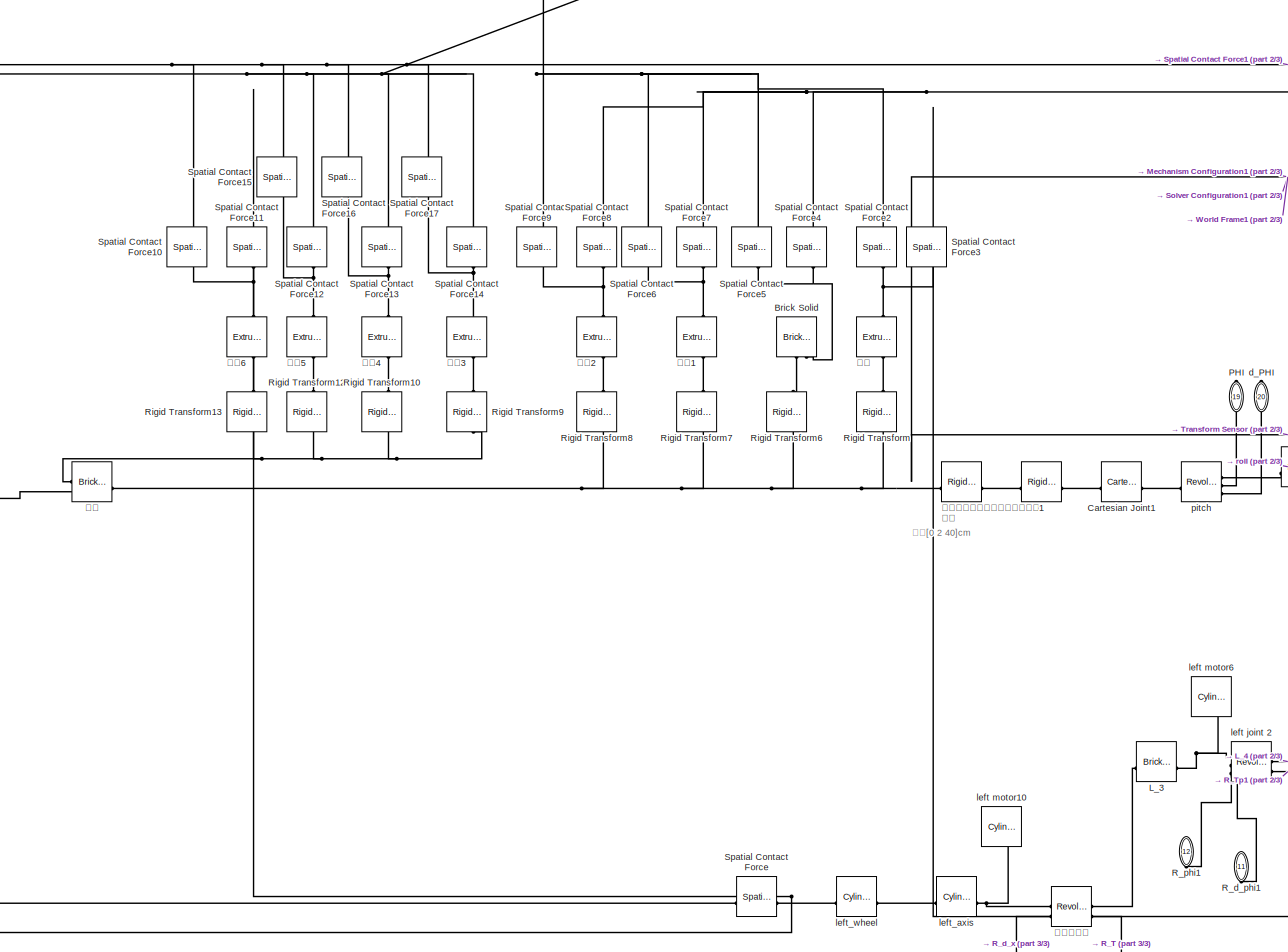
[diagram: blance_leg_model - part 1/3, middle left region]
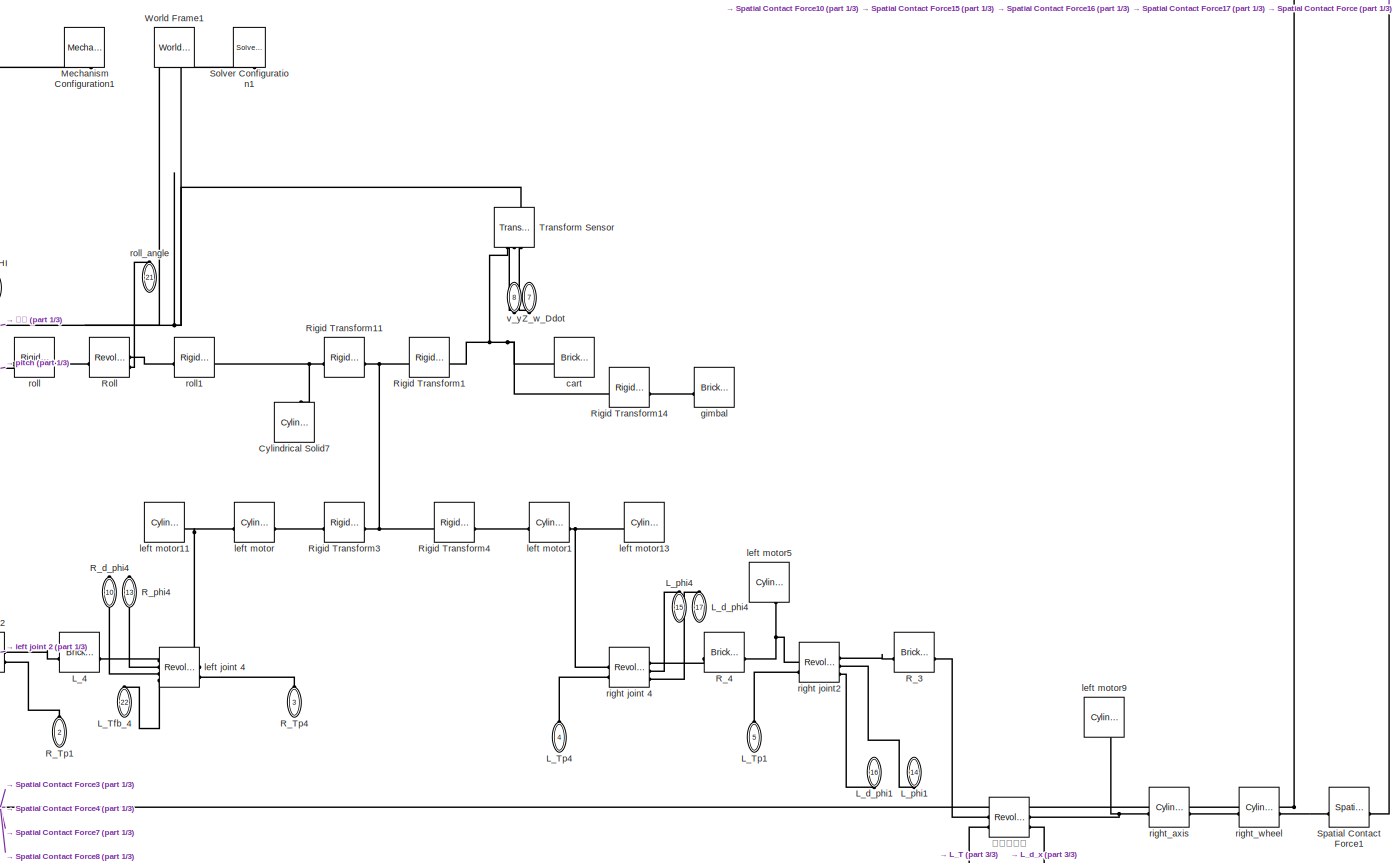
[diagram: blance_leg_model - part 2/3, middle right region]
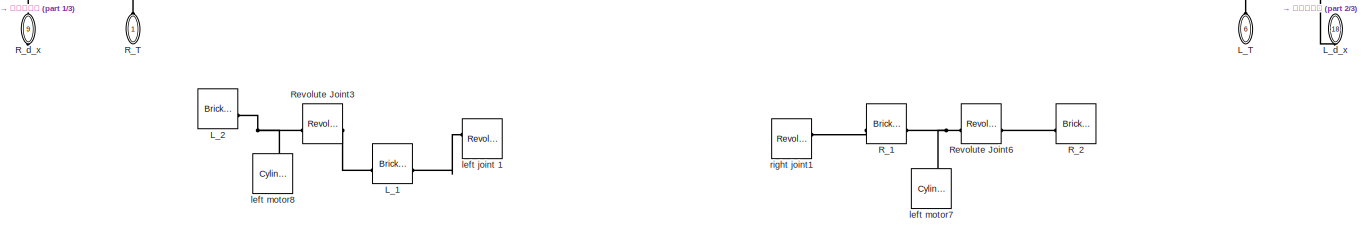
[diagram: blance_leg_model - part 3/3, bottom center region]
BLOCK [SubSystem] blance_leg_model
  NameLocation = left
  PortSchema = {"entries":[{"content":{"sides":[{"content":{"connectorIds":["LConn1","LConn2","LConn3","LConn4","LConn5","LConn6"]},"type":"ConnectorPlacement.EquallySpacedRectSide","uuid":"ed635f35-0836-4900-93e3-56fc3520c8de"},{"content":{"connectorIds":["RConn1","RConn2","RConn3","RConn4","RConn5","RConn6","RConn7","RConn8","RConn9","RConn10","RConn11","RConn12","RConn13","RConn14"],"side":"RIGHT"},"type":"Co...<+557ch>
BLOCK [Reference] blance_leg_model/1  REF=sm_lib/Frames and
Transforms/Rigid
Transform
  SourceBlock = sm_lib/Frames and\nTransforms/Rigid\nTransform
  SourceType = Rigid\nTransform
BLOCK [Reference] blance_leg_model/Brick Solid  REF=sm_lib/Body Elements/Brick Solid
  NameLocation = right
  SourceBlock = sm_lib/Body Elements/Brick Solid
  SourceType = Brick Solid
BLOCK [Reference] blance_leg_model/Cartesian Joint1  REF=sm_lib/Joints/Cartesian
Joint
  SourceBlock = sm_lib/Joints/Cartesian\nJoint
  SourceType = Cartesian\nJoint
BLOCK [Reference] blance_leg_model/Cylindrical Solid7  REF=sm_lib/Body Elements/Cylindrical Solid
  NameLocation = right
  SourceBlock = sm_lib/Body Elements/Cylindrical Solid
  SourceType = Cylindrical Solid
BLOCK [Reference] blance_leg_model/L_1  REF=sm_lib/Body Elements/Brick Solid
  Commented = on
  NameLocation = top
  SourceBlock = sm_lib/Body Elements/Brick Solid
  SourceType = Brick Solid
BLOCK [Reference] blance_leg_model/L_2  REF=sm_lib/Body Elements/Brick Solid
  Commented = on
  SourceBlock = sm_lib/Body Elements/Brick Solid
  SourceType = Brick Solid
BLOCK [Reference] blance_leg_model/L_3  REF=sm_lib/Body Elements/Brick Solid
  NameLocation = top
  SourceBlock = sm_lib/Body Elements/Brick Solid
  SourceType = Brick Solid
BLOCK [Reference] blance_leg_model/L_4  REF=sm_lib/Body Elements/Brick Solid
  NameLocation = top
  SourceBlock = sm_lib/Body Elements/Brick Solid
  SourceType = Brick Solid
BLOCK [PMIOPort] blance_leg_model/L_T
  NameLocation = right
  Port = 6
  Side = Left
BLOCK [PMIOPort] blance_leg_model/L_Tfb_4
  NameLocation = left
  Port = 22
  Side = Right
BLOCK [PMIOPort] blance_leg_model/L_Tp1
  NameLocation = right
  Port = 5
  Side = Left
BLOCK [PMIOPort] blance_leg_model/L_Tp4
  NameLocation = left
  Port = 4
  Side = Left
BLOCK [PMIOPort] blance_leg_model/L_d_phi1
  NameLocation = left
  Port = 16
  Side = Right
BLOCK [PMIOPort] blance_leg_model/L_d_phi4
  NameLocation = right
  Port = 17
  Side = Right
BLOCK [PMIOPort] blance_leg_model/L_d_x
  NameLocation = right
  Port = 18
  Side = Right
BLOCK [PMIOPort] blance_leg_model/L_phi1
  NameLocation = right
  Port = 14
  Side = Right
BLOCK [PMIOPort] blance_leg_model/L_phi4
  NameLocation = left
  Port = 15
  Side = Right
BLOCK [Reference] blance_leg_model/Mechanism Configuration1  REF=sm_lib/Utilities/Mechanism
Configuration
  NameLocation = left
  SourceBlock = sm_lib/Utilities/Mechanism\nConfiguration
  SourceType = Mechanism\nConfiguration
BLOCK [PMIOPort] blance_leg_model/PHI
  NameLocation = left
  Port = 19
  Side = Right
BLOCK [Reference] blance_leg_model/R_1  REF=sm_lib/Body Elements/Brick Solid
  Commented = on
  NameLocation = top
  SourceBlock = sm_lib/Body Elements/Brick Solid
  SourceType = Brick Solid
BLOCK [Reference] blance_leg_model/R_2  REF=sm_lib/Body Elements/Brick Solid
  Commented = on
  NameLocation = top
  SourceBlock = sm_lib/Body Elements/Brick Solid
  SourceType = Brick Solid
BLOCK [Reference] blance_leg_model/R_3  REF=sm_lib/Body Elements/Brick Solid
  NameLocation = top
  SourceBlock = sm_lib/Body Elements/Brick Solid
  SourceType = Brick Solid
BLOCK [Reference] blance_leg_model/R_4  REF=sm_lib/Body Elements/Brick Solid
  NameLocation = top
  SourceBlock = sm_lib/Body Elements/Brick Solid
  SourceType = Brick Solid
BLOCK [PMIOPort] blance_leg_model/R_T
  NameLocation = right
  Side = Left
BLOCK [PMIOPort] blance_leg_model/R_Tp1
  NameLocation = left
  Port = 2
  Side = Left
BLOCK [PMIOPort] blance_leg_model/R_Tp4
  NameLocation = right
  Port = 3
  Side = Left
BLOCK [PMIOPort] blance_leg_model/R_d_phi1
  NameLocation = right
  Port = 11
  Side = Right
BLOCK [PMIOPort] blance_leg_model/R_d_phi4
  NameLocation = left
  Port = 10
  Side = Right
BLOCK [PMIOPort] blance_leg_model/R_d_x
  NameLocation = left
  Port = 9
  Side = Right
BLOCK [PMIOPort] blance_leg_model/R_phi1
  NameLocation = left
  Port = 12
  Side = Right
BLOCK [PMIOPort] blance_leg_model/R_phi4
  NameLocation = right
  Port = 13
  Side = Right
BLOCK [Reference] blance_leg_model/Revolute Joint3  REF=sm_lib/Joints/Revolute Joint
  Commented = on
  NameLocation = top
  SourceBlock = sm_lib/Joints/Revolute Joint
  SourceType = Revolute Joint
BLOCK [Reference] blance_leg_model/Revolute Joint6  REF=sm_lib/Joints/Revolute Joint
  Commented = on
  SourceBlock = sm_lib/Joints/Revolute Joint
  SourceType = Revolute Joint
BLOCK [Reference] blance_leg_model/Rigid Transform  REF=sm_lib/Frames and
Transforms/Rigid
Transform
  NameLocation = right
  SourceBlock = sm_lib/Frames and\nTransforms/Rigid\nTransform
  SourceType = Rigid\nTransform
BLOCK [Reference] blance_leg_model/Rigid Transform1  REF=sm_lib/Frames and
Transforms/Rigid
Transform
  SourceBlock = sm_lib/Frames and\nTransforms/Rigid\nTransform
  SourceType = Rigid\nTransform
BLOCK [Reference] blance_leg_model/Rigid Transform10  REF=sm_lib/Frames and
Transforms/Rigid
Transform
  NameLocation = right
  SourceBlock = sm_lib/Frames and\nTransforms/Rigid\nTransform
  SourceType = Rigid\nTransform
BLOCK [Reference] blance_leg_model/Rigid Transform11  REF=sm_lib/Frames and
Transforms/Rigid
Transform
  NameLocation = top
  SourceBlock = sm_lib/Frames and\nTransforms/Rigid\nTransform
  SourceType = Rigid\nTransform
BLOCK [Reference] blance_leg_model/Rigid Transform12  REF=sm_lib/Frames and
Transforms/Rigid
Transform
  NameLocation = right
  SourceBlock = sm_lib/Frames and\nTransforms/Rigid\nTransform
  SourceType = Rigid\nTransform
BLOCK [Reference] blance_leg_model/Rigid Transform13  REF=sm_lib/Frames and
Transforms/Rigid
Transform
  NameLocation = right
  SourceBlock = sm_lib/Frames and\nTransforms/Rigid\nTransform
  SourceType = Rigid\nTransform
BLOCK [Reference] blance_leg_model/Rigid Transform14  REF=sm_lib/Frames and
Transforms/Rigid
Transform
  SourceBlock = sm_lib/Frames and\nTransforms/Rigid\nTransform
  SourceType = Rigid\nTransform
BLOCK [Reference] blance_leg_model/Rigid Transform3  REF=sm_lib/Frames and
Transforms/Rigid
Transform
  NameLocation = top
  SourceBlock = sm_lib/Frames and\nTransforms/Rigid\nTransform
  SourceType = Rigid\nTransform
BLOCK [Reference] blance_leg_model/Rigid Transform4  REF=sm_lib/Frames and
Transforms/Rigid
Transform
  SourceBlock = sm_lib/Frames and\nTransforms/Rigid\nTransform
  SourceType = Rigid\nTransform
BLOCK [Reference] blance_leg_model/Rigid Transform6  REF=sm_lib/Frames and
Transforms/Rigid
Transform
  NameLocation = right
  SourceBlock = sm_lib/Frames and\nTransforms/Rigid\nTransform
  SourceType = Rigid\nTransform
BLOCK [Reference] blance_leg_model/Rigid Transform7  REF=sm_lib/Frames and
Transforms/Rigid
Transform
  NameLocation = right
  SourceBlock = sm_lib/Frames and\nTransforms/Rigid\nTransform
  SourceType = Rigid\nTransform
BLOCK [Reference] blance_leg_model/Rigid Transform8  REF=sm_lib/Frames and
Transforms/Rigid
Transform
  Commented = on
  NameLocation = right
  SourceBlock = sm_lib/Frames and\nTransforms/Rigid\nTransform
  SourceType = Rigid\nTransform
BLOCK [Reference] blance_leg_model/Rigid Transform9  REF=sm_lib/Frames and
Transforms/Rigid
Transform
  NameLocation = right
  SourceBlock = sm_lib/Frames and\nTransforms/Rigid\nTransform
  SourceType = Rigid\nTransform
BLOCK [Reference] blance_leg_model/Roll  REF=sm_lib/Joints/Revolute Joint
  SourceBlock = sm_lib/Joints/Revolute Joint
  SourceType = Revolute Joint
BLOCK [Reference] blance_leg_model/Solver Configuration1  REF=nesl_utility/Solver
Configuration
  NameLocation = left
  SourceBlock = nesl_utility/Solver\nConfiguration
  SourceType = Solver\nConfiguration
BLOCK [Reference] blance_leg_model/Spatial Contact Force  REF=sm_lib/Forces and
Torques/Spatial
Contact Force
  SourceBlock = sm_lib/Forces and\nTorques/Spatial\nContact Force
  SourceType = Spatial\nContact Force
BLOCK [Reference] blance_leg_model/Spatial Contact Force1  REF=sm_lib/Forces and
Torques/Spatial
Contact Force
  NameLocation = top
  SourceBlock = sm_lib/Forces and\nTorques/Spatial\nContact Force
  SourceType = Spatial\nContact Force
BLOCK [Reference] blance_leg_model/Spatial Contact Force10  REF=sm_lib/Forces and
Torques/Spatial
Contact Force
  NameLocation = right
  SourceBlock = sm_lib/Forces and\nTorques/Spatial\nContact Force
  SourceType = Spatial\nContact Force
BLOCK [Reference] blance_leg_model/Spatial Contact Force11  REF=sm_lib/Forces and
Torques/Spatial
Contact Force
  NameLocation = right
  SourceBlock = sm_lib/Forces and\nTorques/Spatial\nContact Force
  SourceType = Spatial\nContact Force
BLOCK [Reference] blance_leg_model/Spatial Contact Force12  REF=sm_lib/Forces and
Torques/Spatial
Contact Force
  NameLocation = right
  SourceBlock = sm_lib/Forces and\nTorques/Spatial\nContact Force
  SourceType = Spatial\nContact Force
BLOCK [Reference] blance_leg_model/Spatial Contact Force13  REF=sm_lib/Forces and
Torques/Spatial
Contact Force
  NameLocation = right
  SourceBlock = sm_lib/Forces and\nTorques/Spatial\nContact Force
  SourceType = Spatial\nContact Force
BLOCK [Reference] blance_leg_model/Spatial Contact Force14  REF=sm_lib/Forces and
Torques/Spatial
Contact Force
  NameLocation = right
  SourceBlock = sm_lib/Forces and\nTorques/Spatial\nContact Force
  SourceType = Spatial\nContact Force
BLOCK [Reference] blance_leg_model/Spatial Contact Force15  REF=sm_lib/Forces and
Torques/Spatial
Contact Force
  NameLocation = right
  SourceBlock = sm_lib/Forces and\nTorques/Spatial\nContact Force
  SourceType = Spatial\nContact Force
BLOCK [Reference] blance_leg_model/Spatial Contact Force16  REF=sm_lib/Forces and
Torques/Spatial
Contact Force
  NameLocation = right
  SourceBlock = sm_lib/Forces and\nTorques/Spatial\nContact Force
  SourceType = Spatial\nContact Force
BLOCK [Reference] blance_leg_model/Spatial Contact Force17  REF=sm_lib/Forces and
Torques/Spatial
Contact Force
  NameLocation = right
  SourceBlock = sm_lib/Forces and\nTorques/Spatial\nContact Force
  SourceType = Spatial\nContact Force
BLOCK [Reference] blance_leg_model/Spatial Contact Force2  REF=sm_lib/Forces and
Torques/Spatial
Contact Force
  NameLocation = right
  SourceBlock = sm_lib/Forces and\nTorques/Spatial\nContact Force
  SourceType = Spatial\nContact Force
BLOCK [Reference] blance_leg_model/Spatial Contact Force3  REF=sm_lib/Forces and
Torques/Spatial
Contact Force
  NameLocation = right
  SourceBlock = sm_lib/Forces and\nTorques/Spatial\nContact Force
  SourceType = Spatial\nContact Force
BLOCK [Reference] blance_leg_model/Spatial Contact Force4  REF=sm_lib/Forces and
Torques/Spatial
Contact Force
  NameLocation = right
  SourceBlock = sm_lib/Forces and\nTorques/Spatial\nContact Force
  SourceType = Spatial\nContact Force
BLOCK [Reference] blance_leg_model/Spatial Contact Force5  REF=sm_lib/Forces and
Torques/Spatial
Contact Force
  NameLocation = right
  SourceBlock = sm_lib/Forces and\nTorques/Spatial\nContact Force
  SourceType = Spatial\nContact Force
BLOCK [Reference] blance_leg_model/Spatial Contact Force6  REF=sm_lib/Forces and
Torques/Spatial
Contact Force
  NameLocation = right
  SourceBlock = sm_lib/Forces and\nTorques/Spatial\nContact Force
  SourceType = Spatial\nContact Force
BLOCK [Reference] blance_leg_model/Spatial Contact Force7  REF=sm_lib/Forces and
Torques/Spatial
Contact Force
  NameLocation = right
  SourceBlock = sm_lib/Forces and\nTorques/Spatial\nContact Force
  SourceType = Spatial\nContact Force
BLOCK [Reference] blance_leg_model/Spatial Contact Force8  REF=sm_lib/Forces and
Torques/Spatial
Contact Force
  Commented = on
  NameLocation = right
  SourceBlock = sm_lib/Forces and\nTorques/Spatial\nContact Force
  SourceType = Spatial\nContact Force
BLOCK [Reference] blance_leg_model/Spatial Contact Force9  REF=sm_lib/Forces and
Torques/Spatial
Contact Force
  Commented = on
  NameLocation = right
  SourceBlock = sm_lib/Forces and\nTorques/Spatial\nContact Force
  SourceType = Spatial\nContact Force
BLOCK [Reference] blance_leg_model/Transform Sensor  REF=sm_lib/Frames and
Transforms/Transform
Sensor
  NameLocation = left
  SourceBlock = sm_lib/Frames and\nTransforms/Transform\nSensor
  SourceType = Transform\nSensor
BLOCK [Reference] blance_leg_model/World Frame1  REF=sm_lib/Frames and
Transforms/World Frame
  NameLocation = left
  SourceBlock = sm_lib/Frames and\nTransforms/World Frame
  SourceType = World Frame
BLOCK [PMIOPort] blance_leg_model/Z_w_Ddot
  NameLocation = right
  Port = 7
  Side = Right
BLOCK [Reference] blance_leg_model/cart  REF=sm_lib/Body Elements/Brick Solid
  NameLocation = top
  SourceBlock = sm_lib/Body Elements/Brick Solid
  SourceType = Brick Solid
BLOCK [PMIOPort] blance_leg_model/d_PHI
  NameLocation = right
  Port = 20
  Side = Right
BLOCK [Reference] blance_leg_model/gimbal  REF=sm_lib/Body Elements/Brick Solid
  NameLocation = top
  SourceBlock = sm_lib/Body Elements/Brick Solid
  SourceType = Brick Solid
BLOCK [Reference] blance_leg_model/left joint 1  REF=sm_lib/Joints/Revolute Joint
  Commented = on
  NameLocation = top
  SourceBlock = sm_lib/Joints/Revolute Joint
  SourceType = Revolute Joint
BLOCK [Reference] blance_leg_model/left joint 2  REF=sm_lib/Joints/Revolute Joint
  NameLocation = top
  SourceBlock = sm_lib/Joints/Revolute Joint
  SourceType = Revolute Joint
BLOCK [Reference] blance_leg_model/left joint 4   REF=sm_lib/Joints/Revolute Joint
  NameLocation = top
  SourceBlock = sm_lib/Joints/Revolute Joint
  SourceType = Revolute Joint
BLOCK [Reference] blance_leg_model/left motor  REF=sm_lib/Body Elements/Cylindrical Solid
  NameLocation = top
  SourceBlock = sm_lib/Body Elements/Cylindrical Solid
  SourceType = Cylindrical Solid
BLOCK [Reference] blance_leg_model/left motor1  REF=sm_lib/Body Elements/Cylindrical Solid
  NameLocation = top
  SourceBlock = sm_lib/Body Elements/Cylindrical Solid
  SourceType = Cylindrical Solid
BLOCK [Reference] blance_leg_model/left motor10  REF=sm_lib/Body Elements/Cylindrical Solid
  NameLocation = top
  SourceBlock = sm_lib/Body Elements/Cylindrical Solid
  SourceType = Cylindrical Solid
BLOCK [Reference] blance_leg_model/left motor11  REF=sm_lib/Body Elements/Cylindrical Solid
  NameLocation = top
  SourceBlock = sm_lib/Body Elements/Cylindrical Solid
  SourceType = Cylindrical Solid
BLOCK [Reference] blance_leg_model/left motor13  REF=sm_lib/Body Elements/Cylindrical Solid
  SourceBlock = sm_lib/Body Elements/Cylindrical Solid
  SourceType = Cylindrical Solid
BLOCK [Reference] blance_leg_model/left motor5  REF=sm_lib/Body Elements/Cylindrical Solid
  NameLocation = top
  SourceBlock = sm_lib/Body Elements/Cylindrical Solid
  SourceType = Cylindrical Solid
BLOCK [Reference] blance_leg_model/left motor6  REF=sm_lib/Body Elements/Cylindrical Solid
  NameLocation = top
  SourceBlock = sm_lib/Body Elements/Cylindrical Solid
  SourceType = Cylindrical Solid
BLOCK [Reference] blance_leg_model/left motor7  REF=sm_lib/Body Elements/Cylindrical Solid
  Commented = on
  SourceBlock = sm_lib/Body Elements/Cylindrical Solid
  SourceType = Cylindrical Solid
BLOCK [Reference] blance_leg_model/left motor8  REF=sm_lib/Body Elements/Cylindrical Solid
  Commented = on
  SourceBlock = sm_lib/Body Elements/Cylindrical Solid
  SourceType = Cylindrical Solid
BLOCK [Reference] blance_leg_model/left motor9  REF=sm_lib/Body Elements/Cylindrical Solid
  NameLocation = top
  SourceBlock = sm_lib/Body Elements/Cylindrical Solid
  SourceType = Cylindrical Solid
BLOCK [Reference] blance_leg_model/left_axis  REF=sm_lib/Body Elements/Cylindrical Solid
  SourceBlock = sm_lib/Body Elements/Cylindrical Solid
  SourceType = Cylindrical Solid
BLOCK [Reference] blance_leg_model/left_wheel  REF=sm_lib/Body Elements/Cylindrical Solid
  SourceBlock = sm_lib/Body Elements/Cylindrical Solid
  SourceType = Cylindrical Solid
BLOCK [Reference] blance_leg_model/pitch  REF=sm_lib/Joints/Revolute Joint
  SourceBlock = sm_lib/Joints/Revolute Joint
  SourceType = Revolute Joint
BLOCK [Reference] blance_leg_model/right joint 4  REF=sm_lib/Joints/Revolute Joint
  NameLocation = top
  SourceBlock = sm_lib/Joints/Revolute Joint
  SourceType = Revolute Joint
BLOCK [Reference] blance_leg_model/right joint1  REF=sm_lib/Joints/Revolute Joint
  Commented = on
  NameLocation = top
  SourceBlock = sm_lib/Joints/Revolute Joint
  SourceType = Revolute Joint
BLOCK [Reference] blance_leg_model/right joint2  REF=sm_lib/Joints/Revolute Joint
  NameLocation = top
  SourceBlock = sm_lib/Joints/Revolute Joint
  SourceType = Revolute Joint
BLOCK [Reference] blance_leg_model/right_axis  REF=sm_lib/Body Elements/Cylindrical Solid
  SourceBlock = sm_lib/Body Elements/Cylindrical Solid
  SourceType = Cylindrical Solid
BLOCK [Reference] blance_leg_model/right_wheel  REF=sm_lib/Body Elements/Cylindrical Solid
  SourceBlock = sm_lib/Body Elements/Cylindrical Solid
  SourceType = Cylindrical Solid
BLOCK [Reference] blance_leg_model/roll  REF=sm_lib/Frames and
Transforms/Rigid
Transform
  SourceBlock = sm_lib/Frames and\nTransforms/Rigid\nTransform
  SourceType = Rigid\nTransform
BLOCK [Reference] blance_leg_model/roll1  REF=sm_lib/Frames and
Transforms/Rigid
Transform
  SourceBlock = sm_lib/Frames and\nTransforms/Rigid\nTransform
  SourceType = Rigid\nTransform
BLOCK [PMIOPort] blance_leg_model/roll_angle
  NameLocation = right
  Port = 21
  Side = Right
BLOCK [PMIOPort] blance_leg_model/v_y
  NameLocation = left
  Port = 8
  Side = Right
BLOCK [Reference] blance_leg_model/右轮毂电机  REF=sm_lib/Joints/Revolute Joint
  SourceBlock = sm_lib/Joints/Revolute Joint
  SourceType = Revolute Joint
BLOCK [Reference] blance_leg_model/地板  REF=sm_lib/Body Elements/Brick Solid
  SourceBlock = sm_lib/Body Elements/Brick Solid
  SourceType = Brick Solid
BLOCK [Reference] blance_leg_model/左轮毂电机  REF=sm_lib/Joints/Revolute Joint
  NameLocation = top
  SourceBlock = sm_lib/Joints/Revolute Joint
  SourceType = Revolute Joint
BLOCK [Reference] blance_leg_model/斜坡  REF=sm_lib/Body Elements/Extruded Solid
  NameLocation = left
  SourceBlock = sm_lib/Body Elements/Extruded Solid
  SourceType = Extruded Solid
BLOCK [Reference] blance_leg_model/斜坡1  REF=sm_lib/Body Elements/Extruded Solid
  NameLocation = left
  SourceBlock = sm_lib/Body Elements/Extruded Solid
  SourceType = Extruded Solid
BLOCK [Reference] blance_leg_model/斜坡2  REF=sm_lib/Body Elements/Extruded Solid
  Commented = on
  NameLocation = left
  SourceBlock = sm_lib/Body Elements/Extruded Solid
  SourceType = Extruded Solid
BLOCK [Reference] blance_leg_model/斜坡3  REF=sm_lib/Body Elements/Extruded Solid
  NameLocation = left
  SourceBlock = sm_lib/Body Elements/Extruded Solid
  SourceType = Extruded Solid
BLOCK [Reference] blance_leg_model/斜坡4  REF=sm_lib/Body Elements/Extruded Solid
  NameLocation = left
  SourceBlock = sm_lib/Body Elements/Extruded Solid
  SourceType = Extruded Solid
BLOCK [Reference] blance_leg_model/斜坡5  REF=sm_lib/Body Elements/Extruded Solid
  NameLocation = left
  SourceBlock = sm_lib/Body Elements/Extruded Solid
  SourceType = Extruded Solid
BLOCK [Reference] blance_leg_model/斜坡6  REF=sm_lib/Body Elements/Extruded Solid
  NameLocation = left
  SourceBlock = sm_lib/Body Elements/Extruded Solid
  SourceType = Extruded Solid
BLOCK [Reference] blance_leg_model/设置初始数据（高度，距原点距离）  REF=sm_lib/Frames and
Transforms/Rigid
Transform
  SourceBlock = sm_lib/Frames and\nTransforms/Rigid\nTransform
  SourceType = Rigid\nTransform
BLOCK [SubSystem] calc
  PortSchema = {"entries":[{"content":{"sides":[{"content":{"connectorIds":["In1","In2","In3","In4","In5","In6"]},"type":"ConnectorPlacement.EquallySpacedRectSide","uuid":"055cb80c-cd03-4a8d-aef8-6b3df8c72d3f"},{"content":{"connectorIds":["In7"],"side":"RIGHT"},"type":"ConnectorPlacement.EquallySpacedRectSide","uuid":"5756fad1-d70f-4a11-a5af-d2f67bfb0d7e"},{"content":{"connectorIds":["Out1","Out2"],"side":"TOP"}...<+282ch>
BLOCK [Constant] calc/Constant
  NameLocation = top
  Value = a11
BLOCK [Constant] calc/Constant1
  NameLocation = top
  Value = a12
BLOCK [Constant] calc/Constant10
  NameLocation = top
  Value = a25
BLOCK [Constant] calc/Constant11
  NameLocation = top
  Value = a26
BLOCK [Constant] calc/Constant2
  NameLocation = top
  Value = a13
BLOCK [Constant] calc/Constant3
  NameLocation = top
  Value = a14
BLOCK [Constant] calc/Constant4
  NameLocation = top
  Value = a15
BLOCK [Constant] calc/Constant5
  NameLocation = top
  Value = a16
BLOCK [Constant] calc/Constant6
  NameLocation = top
  Value = a21
BLOCK [Constant] calc/Constant7
  NameLocation = top
  Value = a22
BLOCK [Constant] calc/Constant8
  NameLocation = top
  Value = a23
BLOCK [Constant] calc/Constant9
  NameLocation = top
  Value = a24
BLOCK [Gain] calc/Gain1
  Gain = -1
  NameLocation = top
BLOCK [Gain] calc/Gain36
  Gain = 180/pi
  NameLocation = top
BLOCK [SubSystem] calc/MATLAB Function1
  ErrorFcn = Stateflow.Translate.translate
  LibrarySourceBlock = simulink/User-Defined\nFunctions/MATLAB Function
  NameLocation = top
  PermitHierarchicalResolution = ExplicitOnly
  SFBlockType = MATLAB Function
  TreatAsAtomicUnit = on
BLOCK [Demux] calc/MATLAB Function1/ Demux 
  Outputs = 1
BLOCK [S-Function] calc/MATLAB Function1/ SFunction 
  EnableBusSupport = on
  FunctionName = sf_sfun
  PortCounts = [2 2]
  SFcnIsStateOwnerBlock = off
  SFunctionDeploymentMode = off
  Tag = Stateflow S-Function 2
BLOCK [Terminator] calc/MATLAB Function1/ Terminator 
BLOCK [Inport] calc/MATLAB Function1/a
BLOCK [Outport] calc/MATLAB Function1/k
BLOCK [Inport] calc/MATLAB Function1/length
  Port = 2
BLOCK [SubSystem] calc/MATLAB Function10
  ErrorFcn = Stateflow.Translate.translate
  LibrarySourceBlock = simulink/User-Defined\nFunctions/MATLAB Function
  NameLocation = top
  PermitHierarchicalResolution = ExplicitOnly
  SFBlockType = MATLAB Function
  TreatAsAtomicUnit = on
BLOCK [Demux] calc/MATLAB Function10/ Demux 
  Outputs = 1
BLOCK [S-Function] calc/MATLAB Function10/ SFunction 
  EnableBusSupport = on
  FunctionName = sf_sfun
  PortCounts = [2 2]
  SFcnIsStateOwnerBlock = off
  SFunctionDeploymentMode = off
  Tag = Stateflow S-Function 13
BLOCK [Terminator] calc/MATLAB Function10/ Terminator 
BLOCK [Inport] calc/MATLAB Function10/a
BLOCK [Outport] calc/MATLAB Function10/k
BLOCK [Inport] calc/MATLAB Function10/length
  Port = 2
BLOCK [SubSystem] calc/MATLAB Function11
  ErrorFcn = Stateflow.Translate.translate
  LibrarySourceBlock = simulink/User-Defined\nFunctions/MATLAB Function
  NameLocation = top
  PermitHierarchicalResolution = ExplicitOnly
  SFBlockType = MATLAB Function
  TreatAsAtomicUnit = on
BLOCK [Demux] calc/MATLAB Function11/ Demux 
  Outputs = 1
BLOCK [S-Function] calc/MATLAB Function11/ SFunction 
  EnableBusSupport = on
  FunctionName = sf_sfun
  PortCounts = [2 2]
  SFcnIsStateOwnerBlock = off
  SFunctionDeploymentMode = off
  Tag = Stateflow S-Function 14
BLOCK [Terminator] calc/MATLAB Function11/ Terminator 
BLOCK [Inport] calc/MATLAB Function11/a
BLOCK [Outport] calc/MATLAB Function11/k
BLOCK [Inport] calc/MATLAB Function11/length
  Port = 2
BLOCK [SubSystem] calc/MATLAB Function12
  ErrorFcn = Stateflow.Translate.translate
  LibrarySourceBlock = simulink/User-Defined\nFunctions/MATLAB Function
  NameLocation = top
  PermitHierarchicalResolution = ExplicitOnly
  SFBlockType = MATLAB Function
  TreatAsAtomicUnit = on
BLOCK [Demux] calc/MATLAB Function12/ Demux 
  Outputs = 1
BLOCK [S-Function] calc/MATLAB Function12/ SFunction 
  EnableBusSupport = on
  FunctionName = sf_sfun
  PortCounts = [2 2]
  SFcnIsStateOwnerBlock = off
  SFunctionDeploymentMode = off
  Tag = Stateflow S-Function 15
BLOCK [Terminator] calc/MATLAB Function12/ Terminator 
BLOCK [Inport] calc/MATLAB Function12/a
BLOCK [Outport] calc/MATLAB Function12/k
BLOCK [Inport] calc/MATLAB Function12/length
  Port = 2
BLOCK [SubSystem] calc/MATLAB Function2
  ErrorFcn = Stateflow.Translate.translate
  LibrarySourceBlock = simulink/User-Defined\nFunctions/MATLAB Function
  NameLocation = top
  PermitHierarchicalResolution = ExplicitOnly
  SFBlockType = MATLAB Function
  TreatAsAtomicUnit = on
BLOCK [Demux] calc/MATLAB Function2/ Demux 
  Outputs = 1
BLOCK [S-Function] calc/MATLAB Function2/ SFunction 
  EnableBusSupport = on
  FunctionName = sf_sfun
  PortCounts = [2 2]
  SFcnIsStateOwnerBlock = off
  SFunctionDeploymentMode = off
  Tag = Stateflow S-Function 3
BLOCK [Terminator] calc/MATLAB Function2/ Terminator 
BLOCK [Inport] calc/MATLAB Function2/a
BLOCK [Outport] calc/MATLAB Function2/k
BLOCK [Inport] calc/MATLAB Function2/length
  Port = 2
BLOCK [SubSystem] calc/MATLAB Function3
  ErrorFcn = Stateflow.Translate.translate
  LibrarySourceBlock = simulink/User-Defined\nFunctions/MATLAB Function
  NameLocation = top
  PermitHierarchicalResolution = ExplicitOnly
  SFBlockType = MATLAB Function
  TreatAsAtomicUnit = on
BLOCK [Demux] calc/MATLAB Function3/ Demux 
  Outputs = 1
BLOCK [S-Function] calc/MATLAB Function3/ SFunction 
  EnableBusSupport = on
  FunctionName = sf_sfun
  PortCounts = [2 2]
  SFcnIsStateOwnerBlock = off
  SFunctionDeploymentMode = off
  Tag = Stateflow S-Function 4
BLOCK [Terminator] calc/MATLAB Function3/ Terminator 
BLOCK [Inport] calc/MATLAB Function3/a
BLOCK [Outport] calc/MATLAB Function3/k
BLOCK [Inport] calc/MATLAB Function3/length
  Port = 2
BLOCK [SubSystem] calc/MATLAB Function4
  ErrorFcn = Stateflow.Translate.translate
  LibrarySourceBlock = simulink/User-Defined\nFunctions/MATLAB Function
  NameLocation = top
  PermitHierarchicalResolution = ExplicitOnly
  SFBlockType = MATLAB Function
  TreatAsAtomicUnit = on
BLOCK [Demux] calc/MATLAB Function4/ Demux 
  Outputs = 1
BLOCK [S-Function] calc/MATLAB Function4/ SFunction 
  EnableBusSupport = on
  FunctionName = sf_sfun
  PortCounts = [2 2]
  SFcnIsStateOwnerBlock = off
  SFunctionDeploymentMode = off
  Tag = Stateflow S-Function 5
BLOCK [Terminator] calc/MATLAB Function4/ Terminator 
BLOCK [Inport] calc/MATLAB Function4/a
BLOCK [Outport] calc/MATLAB Function4/k
BLOCK [Inport] calc/MATLAB Function4/length
  Port = 2
BLOCK [SubSystem] calc/MATLAB Function5
  ErrorFcn = Stateflow.Translate.translate
  LibrarySourceBlock = simulink/User-Defined\nFunctions/MATLAB Function
  NameLocation = top
  PermitHierarchicalResolution = ExplicitOnly
  SFBlockType = MATLAB Function
  TreatAsAtomicUnit = on
BLOCK [Demux] calc/MATLAB Function5/ Demux 
  Outputs = 1
BLOCK [S-Function] calc/MATLAB Function5/ SFunction 
  EnableBusSupport = on
  FunctionName = sf_sfun
  PortCounts = [2 2]
  SFcnIsStateOwnerBlock = off
  SFunctionDeploymentMode = off
  Tag = Stateflow S-Function 6
BLOCK [Terminator] calc/MATLAB Function5/ Terminator 
BLOCK [Inport] calc/MATLAB Function5/a
BLOCK [Outport] calc/MATLAB Function5/k
BLOCK [Inport] calc/MATLAB Function5/length
  Port = 2
BLOCK [SubSystem] calc/MATLAB Function6
  ErrorFcn = Stateflow.Translate.translate
  LibrarySourceBlock = simulink/User-Defined\nFunctions/MATLAB Function
  NameLocation = top
  PermitHierarchicalResolution = ExplicitOnly
  SFBlockType = MATLAB Function
  TreatAsAtomicUnit = on
BLOCK [Demux] calc/MATLAB Function6/ Demux 
  Outputs = 1
BLOCK [S-Function] calc/MATLAB Function6/ SFunction 
  EnableBusSupport = on
  FunctionName = sf_sfun
  PortCounts = [2 2]
  SFcnIsStateOwnerBlock = off
  SFunctionDeploymentMode = off
  Tag = Stateflow S-Function 1
BLOCK [Terminator] calc/MATLAB Function6/ Terminator 
BLOCK [Inport] calc/MATLAB Function6/a
BLOCK [Outport] calc/MATLAB Function6/k
BLOCK [Inport] calc/MATLAB Function6/length
  Port = 2
BLOCK [SubSystem] calc/MATLAB Function7
  ErrorFcn = Stateflow.Translate.translate
  LibrarySourceBlock = simulink/User-Defined\nFunctions/MATLAB Function
  NameLocation = top
  PermitHierarchicalResolution = ExplicitOnly
  SFBlockType = MATLAB Function
  TreatAsAtomicUnit = on
BLOCK [Demux] calc/MATLAB Function7/ Demux 
  Outputs = 1
BLOCK [S-Function] calc/MATLAB Function7/ SFunction 
  EnableBusSupport = on
  FunctionName = sf_sfun
  PortCounts = [2 2]
  SFcnIsStateOwnerBlock = off
  SFunctionDeploymentMode = off
  Tag = Stateflow S-Function 16
BLOCK [Terminator] calc/MATLAB Function7/ Terminator 
BLOCK [Inport] calc/MATLAB Function7/a
BLOCK [Outport] calc/MATLAB Function7/k
BLOCK [Inport] calc/MATLAB Function7/length
  Port = 2
BLOCK [SubSystem] calc/MATLAB Function8
  ErrorFcn = Stateflow.Translate.translate
  LibrarySourceBlock = simulink/User-Defined\nFunctions/MATLAB Function
  NameLocation = top
  PermitHierarchicalResolution = ExplicitOnly
  SFBlockType = MATLAB Function
  TreatAsAtomicUnit = on
BLOCK [Demux] calc/MATLAB Function8/ Demux 
  Outputs = 1
BLOCK [S-Function] calc/MATLAB Function8/ SFunction 
  EnableBusSupport = on
  FunctionName = sf_sfun
  PortCounts = [2 2]
  SFcnIsStateOwnerBlock = off
  SFunctionDeploymentMode = off
  Tag = Stateflow S-Function 17
BLOCK [Terminator] calc/MATLAB Function8/ Terminator 
BLOCK [Inport] calc/MATLAB Function8/a
BLOCK [Outport] calc/MATLAB Function8/k
BLOCK [Inport] calc/MATLAB Function8/length
  Port = 2
BLOCK [SubSystem] calc/MATLAB Function9
  ErrorFcn = Stateflow.Translate.translate
  LibrarySourceBlock = simulink/User-Defined\nFunctions/MATLAB Function
  NameLocation = top
  PermitHierarchicalResolution = ExplicitOnly
  SFBlockType = MATLAB Function
  TreatAsAtomicUnit = on
BLOCK [Demux] calc/MATLAB Function9/ Demux 
  Outputs = 1
BLOCK [S-Function] calc/MATLAB Function9/ SFunction 
  EnableBusSupport = on
  FunctionName = sf_sfun
  PortCounts = [2 2]
  SFcnIsStateOwnerBlock = off
  SFunctionDeploymentMode = off
  Tag = Stateflow S-Function 18
BLOCK [Terminator] calc/MATLAB Function9/ Terminator 
BLOCK [Inport] calc/MATLAB Function9/a
BLOCK [Outport] calc/MATLAB Function9/k
BLOCK [Inport] calc/MATLAB Function9/length
  Port = 2
BLOCK [Mux] calc/Mux
  DisplayOption = bar
  Inputs = 6
  NameLocation = top
BLOCK [Mux] calc/Mux1
  DisplayOption = bar
  Inputs = 6
  NameLocation = top
BLOCK [Mux] calc/Mux3
  DisplayOption = bar
  Inputs = 6
BLOCK [Product] calc/Product
  Multiplication = Matrix(*)
  NameLocation = top
BLOCK [Product] calc/Product1
  Multiplication = Matrix(*)
  NameLocation = top
BLOCK [Outport] calc/T
  NameLocation = top
  Port = 2
BLOCK [ToWorkspace] calc/To Workspace
  FixptAsFi = on
  MaxDataPoints = inf
  NameLocation = right
  SampleTime = -1
  Save2DSignal = 2-D array (concatenate along first dimension)
  VariableName = T_out
BLOCK [ToWorkspace] calc/To Workspace1
  FixptAsFi = on
  MaxDataPoints = inf
  NameLocation = left
  SampleTime = -1
  Save2DSignal = 2-D array (concatenate along first dimension)
  VariableName = Tp_out
BLOCK [ToWorkspace] calc/To Workspace2
  FixptAsFi = on
  MaxDataPoints = inf
  NameLocation = right
  SampleTime = -1
  Save2DSignal = 2-D array (concatenate along first dimension)
  VariableName = state_in
BLOCK [Outport] calc/Tp
BLOCK [Reference] calc/Transpose  REF=matrix_library/Transpose
  LibrarySourceBlock = simulink/Matrix\nOperations/Transpose
  NameLocation = top
  SourceBlock = matrix_library/Transpose
  SourceType = Transpose
BLOCK [Reference] calc/Transpose1  REF=matrix_library/Transpose
  LibrarySourceBlock = simulink/Matrix\nOperations/Transpose
  NameLocation = top
  SourceBlock = matrix_library/Transpose
  SourceType = Transpose
BLOCK [Inport] calc/d_phi
  NameLocation = right
  Port = 4
BLOCK [Inport] calc/d_theta
  NameLocation = right
  Port = 2
BLOCK [Inport] calc/d_x
  NameLocation = right
  Port = 6
BLOCK [Inport] calc/length
  NameLocation = top
  Port = 7
BLOCK [Inport] calc/phi
  NameLocation = right
  Port = 3
BLOCK [Inport] calc/theta
  NameLocation = right
BLOCK [Inport] calc/x
  NameLocation = right
  Port = 5
BLOCK [SubSystem] control
  PortSchema = {"entries":[{"content":{"sides":[{"content":{"connectorIds":["In1","In2","In3","In4","In5"]},"type":"ConnectorPlacement.EquallySpacedRectSide","uuid":"40de31e0-cc19-460f-99e9-affbb47f7204"},{"content":{"connectorIds":["Out1","Out2","Out3","Out4","Out5"],"side":"RIGHT"},"type":"ConnectorPlacement.EquallySpacedRectSide","uuid":"e61df4ab-633d-456a-aa2d-223df880274d"},{"content":{"connectorIds":["In6"...<+297ch>
BLOCK [Inport] control/F0
  NameLocation = top
  Port = 5
BLOCK [Outport] control/L0
  Port = 5
BLOCK [SubSystem] control/MATLAB Function6
  ErrorFcn = Stateflow.Translate.translate
  LibrarySourceBlock = simulink/User-Defined\nFunctions/MATLAB Function
  NameLocation = top
  PermitHierarchicalResolution = ExplicitOnly
  SFBlockType = MATLAB Function
  TreatAsAtomicUnit = on
BLOCK [Demux] control/MATLAB Function6/ Demux 
  Outputs = 1
BLOCK [S-Function] control/MATLAB Function6/ SFunction 
  EnableBusSupport = on
  FunctionName = sf_sfun
  PortCounts = [4 3]
  SFcnIsStateOwnerBlock = off
  SFunctionDeploymentMode = off
  Tag = Stateflow S-Function 9
BLOCK [Terminator] control/MATLAB Function6/ Terminator 
BLOCK [Inport] control/MATLAB Function6/F0
BLOCK [Outport] control/MATLAB Function6/T1
BLOCK [Outport] control/MATLAB Function6/T2
  Port = 2
BLOCK [Inport] control/MATLAB Function6/Tp
  Port = 2
BLOCK [Inport] control/MATLAB Function6/phi1
  Port = 3
BLOCK [Inport] control/MATLAB Function6/phi4
  Port = 4
BLOCK [SubSystem] control/MATLAB Function7
  ErrorFcn = Stateflow.Translate.translate
  LibrarySourceBlock = simulink/User-Defined\nFunctions/MATLAB Function
  NameLocation = top
  PermitHierarchicalResolution = ExplicitOnly
  SFBlockType = MATLAB Function
  TreatAsAtomicUnit = on
BLOCK [Demux] control/MATLAB Function7/ Demux 
  Outputs = 1
BLOCK [S-Function] control/MATLAB Function7/ SFunction 
  EnableBusSupport = on
  FunctionName = sf_sfun
  PortCounts = [2 3]
  SFcnIsStateOwnerBlock = off
  SFunctionDeploymentMode = off
  Tag = Stateflow S-Function 10
BLOCK [Terminator] control/MATLAB Function7/ Terminator 
BLOCK [Outport] control/MATLAB Function7/L0
BLOCK [Outport] control/MATLAB Function7/phi0
  Port = 2
BLOCK [Inport] control/MATLAB Function7/phi1
BLOCK [Inport] control/MATLAB Function7/phi4
  Port = 2
BLOCK [SubSystem] control/MATLAB Function8
  ErrorFcn = Stateflow.Translate.translate
  LibrarySourceBlock = simulink/User-Defined\nFunctions/MATLAB Function
  NameLocation = top
  PermitHierarchicalResolution = ExplicitOnly
  SFBlockType = MATLAB Function
  TreatAsAtomicUnit = on
BLOCK [Demux] control/MATLAB Function8/ Demux 
  Outputs = 1
BLOCK [S-Function] control/MATLAB Function8/ SFunction 
  EnableBusSupport = on
  FunctionName = sf_sfun
  PortCounts = [4 2]
  SFcnIsStateOwnerBlock = off
  SFunctionDeploymentMode = off
  Tag = Stateflow S-Function 11
BLOCK [Terminator] control/MATLAB Function8/ Terminator 
BLOCK [Outport] control/MATLAB Function8/d_phi0
BLOCK [Inport] control/MATLAB Function8/d_phi1
  Port = 3
BLOCK [Inport] control/MATLAB Function8/d_phi4
  Port = 4
BLOCK [Inport] control/MATLAB Function8/phi1
BLOCK [Inport] control/MATLAB Function8/phi4
  Port = 2
BLOCK [Outport] control/T1
  NameLocation = top
  Port = 3
BLOCK [Outport] control/T2
  NameLocation = top
  Port = 4
BLOCK [Inport] control/Tp
  Port = 6
BLOCK [Outport] control/d_phi0
  Port = 2
BLOCK [Inport] control/d_phi1
  NameLocation = top
  Port = 3
BLOCK [Inport] control/d_phi4
  Port = 4
BLOCK [Outport] control/phi0
BLOCK [Inport] control/phi1
BLOCK [Inport] control/phi4
  Port = 2
BLOCK [SubSystem] jump_control
  NameLocation = top
  PortSchema = {"entries":[{"content":{"sides":[{"content":{"connectorIds":["In1","In2","Out3","Out4"]},"type":"ConnectorPlacement.EquallySpacedRectSide","uuid":"555f1eec-a1f8-4438-898b-242296387de2"},{"content":{"connectorIds":["In3","In4","Out1","Out2"],"side":"RIGHT"},"type":"ConnectorPlacement.EquallySpacedRectSide","uuid":"4e34be98-beb2-4e32-b120-d99682746887"},{"content":{"connectorIds":[],"side":"TOP"},"t...<+279ch>
BLOCK [Product] jump_control/Divide1
  Inputs = **
  NameLocation = top
BLOCK [Product] jump_control/Divide2
  Inputs = **
  NameLocation = top
BLOCK [Product] jump_control/Divide3
  Inputs = **
  NameLocation = top
BLOCK [Product] jump_control/Divide4
  Inputs = **
  NameLocation = left
BLOCK [Product] jump_control/Divide5
  Inputs = **
  NameLocation = left
BLOCK [Product] jump_control/Divide6
  Inputs = **
  NameLocation = left
BLOCK [Product] jump_control/Divide7
  Inputs = **
  NameLocation = left
BLOCK [Product] jump_control/Divide8
  Inputs = **
  NameLocation = top
BLOCK [Outport] jump_control/L_Tp1
  NameLocation = left
BLOCK [Inport] jump_control/L_Tp1_in
  Port = 3
BLOCK [Inport] jump_control/L_Tp2_in
  Port = 4
BLOCK [Outport] jump_control/L_Tp4
  NameLocation = left
  Port = 2
BLOCK [Outport] jump_control/R_Tp1
  NameLocation = left
  Port = 3
BLOCK [Inport] jump_control/R_Tp1_in
BLOCK [Inport] jump_control/R_Tp2_in
  Port = 2
BLOCK [Outport] jump_control/R_Tp4
  NameLocation = left
  Port = 4
BLOCK [Step] jump_control/Step
  After = -35
  NameLocation = left
  SampleTime = 0
  Time = jump_time
BLOCK [Step] jump_control/Step1
  After = -30
  NameLocation = top
  SampleTime = 0
  Time = jump_time+0.15
BLOCK [Step] jump_control/Step10
  After = 0
  Before = 1
  NameLocation = top
  SampleTime = 0
  Time = jump_time+0.4
BLOCK [Step] jump_control/Step11
  After = 0
  Before = 1
  NameLocation = top
  SampleTime = 0
  Time = jump_time+0.4
BLOCK [Step] jump_control/Step12
  After = 0
  Before = 1
  NameLocation = top
  SampleTime = 0
  Time = jump_time+0.4
BLOCK [Step] jump_control/Step13
  After = 0
  Before = 1
  NameLocation = top
  SampleTime = 0
  Time = jump_time+0.4
BLOCK [Step] jump_control/Step14
  After = 0
  Before = 1
  NameLocation = left
  SampleTime = 0
  Time = jump_time+0.2
BLOCK [Step] jump_control/Step15
  After = 0
  Before = 1
  NameLocation = left
  SampleTime = 0
  Time = jump_time+0.2
BLOCK [Step] jump_control/Step16
  After = 0
  Before = 1
  NameLocation = left
  SampleTime = 0
  Time = jump_time+0.2
BLOCK [Step] jump_control/Step17
  After = 0
  Before = 1
  NameLocation = left
  SampleTime = 0
  Time = jump_time+0.2
BLOCK [Step] jump_control/Step4
  After = -35
  NameLocation = left
  SampleTime = 0
  Time = jump_time
BLOCK [Step] jump_control/Step5
  After = -30
  NameLocation = top
  SampleTime = 0
  Time = jump_time+0.15
BLOCK [Step] jump_control/Step6
  After = 35
  NameLocation = left
  SampleTime = 0
  Time = jump_time
BLOCK [Step] jump_control/Step7
  After = 30
  NameLocation = top
  SampleTime = 0
  Time = jump_time+0.15
BLOCK [Step] jump_control/Step8
  After = 35
  NameLocation = left
  SampleTime = 0
  Time = jump_time
BLOCK [Step] jump_control/Step9
  After = 30
  NameLocation = top
  SampleTime = 0
  Time = jump_time+0.15
BLOCK [Sum] jump_control/Sum1
  Inputs = ++|
  NameLocation = left
BLOCK [Sum] jump_control/Sum2
  Inputs = ++|
  NameLocation = left
BLOCK [Sum] jump_control/Sum3
  Inputs = |++
  NameLocation = left
BLOCK [Sum] jump_control/Sum4
  Inputs = |++
  NameLocation = left
BLOCK [Sum] jump_control/Sum5
  Inputs = |+-
  NameLocation = left
BLOCK [Sum] jump_control/Sum6
  Inputs = |+-
  NameLocation = left
BLOCK [Sum] jump_control/Sum7
  Inputs = |+-
  NameLocation = left
BLOCK [Sum] jump_control/Sum8
  Inputs = |+-
  NameLocation = left
BLOCK [Scope] mean_x2
  Floating = off
  NameLocation = left
  NumInputPorts = 1
  ScopeSpecificationString = Simulink.scopes.TimeScopeBlockCfg('CurrentConfiguration', extmgr.ConfigurationSet(extmgr.Configuration('Core','General UI',true),extmgr.Configuration('Core','Source UI',true),extmgr.Configuration('Sources','WiredSimulink',true,'DataLoggingVariableName','ScopeData16'),extmgr.Configuration('Visuals','Time Domain',true,'SerializedDisplays',{struct('MinYLimReal','-1.00000','MaxYLimReal','1.00000','YLa...<+1519ch>
BLOCK [Constant] roll设定角度
  NameLocation = right
  Value = 0
BLOCK [Constant] 除去轮子后机体重量
  NameLocation = right
  Value = 14
BLOCK [Constant] 除去轮子后机体重量，
  NameLocation = left
  Value = 14
ANNOTATION Subsystem1: 根据拟合多项式和腿长计算增益
ANNOTATION blance_leg_model: 原始[0 2 40]cm
ANNOTATION calc: <email>:PIP-EmbeddedSystemGroup/2024-BalanceInfantry.git
LINE Constant10:1 -> Sum20:1
LINE Constant12:1 -> Sum15:2
LINE Constant1:1 -> Sum23:4
LINE Constant2:1 -> Sum24:1
LINE Constant3:1 -> Sum17:1
LINE Constant:1 -> Sum29:3
LINE Cos1:1 -> Divide1:2
LINE Cos:1 -> Divide:2
LINE Delay1:1 -> Saturation1:1
LINE Delay2:1 -> Saturation2:1
LINE Delay3:1 -> Saturation3:1
NET Delay4:1 -> Saturation8:1, Scope6:1
LINE Delay5:1 -> Saturation4:1
NET Delay:1 -> Saturation7:1, Scope1:1
LINE Divide1:1 -> Sum18:2
LINE Divide:1 -> Sum25:1
LINE Gain22:1 -> R_phi:1
LINE Gain24:1 -> L_theta:1
LINE Gain25:1 -> L_d_theta:1
LINE Gain26:1 -> L_d_phi:1
LINE Gain29:1 -> Integrator4:1
LINE Gain33:1 -> L_phi:1
LINE Gain36:1 -> R_theta:1
LINE Gain38:1 -> R_d_theta:1
LINE Gain40:1 -> R_d_phi:1
LINE Gain41:1 -> Integrator2:1
NET Integrator1:1 -> Scope7:2, Sum26:2
LINE Integrator2:1 -> R_X:1
LINE Integrator4:1 -> L_X:1
NET Integrator:1 -> Scope7:1, Sum26:1
LINE MATLAB Function1:1 -> Subsystem1:7
NET MATLAB Function7:1 -> Scope15:1, calc:7
NET PID Controller1:1 -> Scope11:1, Sum23:2, Sum29:2
NET PID Controller2:1 -> Saturation6:1, Scope16:1
LINE PID Controller3:1 -> Saturation9:1
NET PS-Simulink Converter19:1 -> Integrator:1, Subsystem1:6, calc:6
NET PS-Simulink Converter1:1 -> Scope9:1, Sum2:1
LINE PS-Simulink Converter20:1 -> Subsystem4:3
LINE PS-Simulink Converter21:1 -> Subsystem4:4
LINE PS-Simulink Converter22:1 -> Gain29:1
NET PS-Simulink Converter23:1 -> Gain22:1, Gain33:1, Scope19:2, Subsystem1:3, Sum17:3, Sum24:3, calc:3
NET PS-Simulink Converter24:1 -> Gain26:1, Gain40:1, Subsystem1:4, Sum16:2, Sum27:2, calc:4
LINE PS-Simulink Converter28:1 -> Gain41:1
LINE PS-Simulink Converter29:1 -> control:4
LINE PS-Simulink Converter2:1 -> Scope10:1
LINE PS-Simulink Converter31:1 -> control:3
NET PS-Simulink Converter32:1 -> MATLAB Function7:1, Scope18:1, control:1
NET PS-Simulink Converter33:1 -> MATLAB Function1:1, Subsystem4:1
LINE PS-Simulink Converter34:1 -> Sum20:2
LINE PS-Simulink Converter35:1 -> Sum15:1
LINE Saturation1:1 -> Simulink-PS Converter1:1
LINE Saturation2:1 -> Simulink-PS Converter3:1
LINE Saturation3:1 -> Simulink-PS Converter2:1
NET Saturation4:1 -> Scope12:1, Simulink-PS Converter5:1
LINE Saturation6:1 -> Sum25:2
LINE Saturation7:1 -> Simulink-PS Converter6:1
LINE Saturation8:1 -> Simulink-PS Converter4:1
LINE Saturation9:1 -> Sum18:1
LINE Sine Wave:1 -> Product:1
LINE Step1:1 -> Product:2
LINE Step2:1 -> Sum22:1
LINE Step3:1 -> Sum22:2
LINE Subsystem1/Constant10:1 -> Subsystem1/MATLAB Function10:1
LINE Subsystem1/Constant11:1 -> Subsystem1/MATLAB Function11:1
LINE Subsystem1/Constant1:1 -> Subsystem1/MATLAB Function1:1
LINE Subsystem1/Constant2:1 -> Subsystem1/MATLAB Function2:1
LINE Subsystem1/Constant3:1 -> Subsystem1/MATLAB Function3:1
LINE Subsystem1/Constant4:1 -> Subsystem1/MATLAB Function4:1
LINE Subsystem1/Constant5:1 -> Subsystem1/MATLAB Function5:1
LINE Subsystem1/Constant6:1 -> Subsystem1/MATLAB Function12:1
LINE Subsystem1/Constant7:1 -> Subsystem1/MATLAB Function7:1
LINE Subsystem1/Constant8:1 -> Subsystem1/MATLAB Function8:1
LINE Subsystem1/Constant9:1 -> Subsystem1/MATLAB Function9:1
LINE Subsystem1/Constant:1 -> Subsystem1/MATLAB Function6:1
LINE Subsystem1/Gain36:1 -> Subsystem1/Tp:1
NET Subsystem1/Length:1 -> Subsystem1/MATLAB Function10:2, Subsystem1/MATLAB Function11:2, Subsystem1/MATLAB Function12:2, Subsystem1/MATLAB Function1:2, Subsystem1/MATLAB Function2:2, Subsystem1/MATLAB Function3:2, Subsystem1/MATLAB Function4:2, Subsystem1/MATLAB Function5:2, Subsystem1/MATLAB Function6:2, Subsystem1/MATLAB Function7:2, Subsystem1/MATLAB Function8:2, Subsystem1/MATLAB Function9:2
LINE Subsystem1/MATLAB Function10:1 -> Subsystem1/Mux1:5
LINE Subsystem1/MATLAB Function11:1 -> Subsystem1/Mux1:6
LINE Subsystem1/MATLAB Function12:1 -> Subsystem1/Mux1:1
LINE Subsystem1/MATLAB Function1:1 -> Subsystem1/Mux:2
LINE Subsystem1/MATLAB Function2:1 -> Subsystem1/Mux:3
LINE Subsystem1/MATLAB Function3:1 -> Subsystem1/Mux:4
LINE Subsystem1/MATLAB Function4:1 -> Subsystem1/Mux:5
LINE Subsystem1/MATLAB Function5:1 -> Subsystem1/Mux:6
LINE Subsystem1/MATLAB Function6:1 -> Subsystem1/Mux:1
LINE Subsystem1/MATLAB Function7:1 -> Subsystem1/Mux1:2
LINE Subsystem1/MATLAB Function8:1 -> Subsystem1/Mux1:3
LINE Subsystem1/MATLAB Function9:1 -> Subsystem1/Mux1:4
LINE Subsystem1/Mux1:1 -> Subsystem1/Transpose:1
NET Subsystem1/Mux3:1 -> Subsystem1/Product1:2, Subsystem1/Product:2
LINE Subsystem1/Mux:1 -> Subsystem1/Transpose1:1
LINE Subsystem1/Product1:1 -> Subsystem1/Gain36:1
LINE Subsystem1/Product:1 -> Subsystem1/T:1
LINE Subsystem1/Transpose1:1 -> Subsystem1/Product:1
LINE Subsystem1/Transpose:1 -> Subsystem1/Product1:1
LINE Subsystem1/d_phi:1 -> Subsystem1/Mux3:6
LINE Subsystem1/d_theta:1 -> Subsystem1/Mux3:2
LINE Subsystem1/d_x:1 -> Subsystem1/Mux3:4
LINE Subsystem1/phi:1 -> Subsystem1/Mux3:5
LINE Subsystem1/theta:1 -> Subsystem1/Mux3:1
LINE Subsystem1/x:1 -> Subsystem1/Mux3:3
LINE Subsystem1:1 -> Subsystem4:6
LINE Subsystem1:2 -> Delay4:1
LINE Subsystem4/F0:1 -> Subsystem4/MATLAB Function9:1
LINE Subsystem4/MATLAB Function10:1 -> Subsystem4/L0:1
LINE Subsystem4/MATLAB Function10:2 -> Subsystem4/phi0:1
LINE Subsystem4/MATLAB Function11:1 -> Subsystem4/d_phi0:1
LINE Subsystem4/MATLAB Function9:1 -> Subsystem4/T1:1
LINE Subsystem4/MATLAB Function9:2 -> Subsystem4/T2:1
LINE Subsystem4/Tp:1 -> Subsystem4/MATLAB Function9:2
LINE Subsystem4/d_phi1:1 -> Subsystem4/MATLAB Function11:3
LINE Subsystem4/d_phi4:1 -> Subsystem4/MATLAB Function11:4
NET Subsystem4/phi1:1 -> Subsystem4/MATLAB Function10:1, Subsystem4/MATLAB Function11:1, Subsystem4/MATLAB Function9:3
NET Subsystem4/phi4:1 -> Subsystem4/MATLAB Function10:2, Subsystem4/MATLAB Function11:2, Subsystem4/MATLAB Function9:4
NET Subsystem4:1 -> Sum17:2, Sum3:2
LINE Subsystem4:2 -> Sum27:1
LINE Subsystem4:3 -> Sum7:2
NET Subsystem4:4 -> Scope5:1, Sum4:2
LINE Subsystem4:5 -> Sum29:1
NET Sum15:1 -> MATLAB Function1:2, Subsystem4:2
NET Sum16:1 -> Gain38:1, calc:2
NET Sum17:1 -> Cos1:1, Gain24:1, Subsystem1:1
LINE Sum18:1 -> Sum1:2
NET Sum1:1 -> Scope20:1, Subsystem4:5
NET Sum20:1 -> MATLAB Function7:2, control:2
LINE Sum22:1 -> Integrator1:1
NET Sum23:1 -> PID Controller2:1, Scope14:1
NET Sum24:1 -> Cos:1, Gain36:1, Scope19:1, calc:1
LINE Sum25:1 -> Sum:1
NET Sum26:1 -> Scope8:1, Subsystem1:5, calc:5
NET Sum27:1 -> Gain25:1, Subsystem1:2
LINE Sum29:1 -> PID Controller3:1
NET Sum2:1 -> Gain:1, PID Controller1:1
NET Sum3:1 -> PID Controller4:1, Scope13:1
NET Sum4:1 -> Delay3:1, Scope4:1
NET Sum5:1 -> Delay2:1, Scope3:1
LINE Sum6:1 -> Delay1:1
LINE Sum7:1 -> Delay5:1
NET Sum:1 -> Scope17:1, control:5
LINE calc/Constant10:1 -> calc/MATLAB Function10:1
LINE calc/Constant11:1 -> calc/MATLAB Function11:1
LINE calc/Constant1:1 -> calc/MATLAB Function1:1
LINE calc/Constant2:1 -> calc/MATLAB Function2:1
LINE calc/Constant3:1 -> calc/MATLAB Function3:1
LINE calc/Constant4:1 -> calc/MATLAB Function4:1
LINE calc/Constant5:1 -> calc/MATLAB Function5:1
LINE calc/Constant6:1 -> calc/MATLAB Function12:1
LINE calc/Constant7:1 -> calc/MATLAB Function7:1
LINE calc/Constant8:1 -> calc/MATLAB Function8:1
LINE calc/Constant9:1 -> calc/MATLAB Function9:1
LINE calc/Constant:1 -> calc/MATLAB Function6:1
NET calc/Gain1:1 -> calc/To Workspace1:1, calc/Tp:1
LINE calc/MATLAB Function10:1 -> calc/Mux1:5
LINE calc/MATLAB Function11:1 -> calc/Mux1:6
LINE calc/MATLAB Function12:1 -> calc/Mux1:1
LINE calc/MATLAB Function1:1 -> calc/Mux:2
LINE calc/MATLAB Function2:1 -> calc/Mux:3
LINE calc/MATLAB Function3:1 -> calc/Mux:4
LINE calc/MATLAB Function4:1 -> calc/Mux:5
LINE calc/MATLAB Function5:1 -> calc/Mux:6
LINE calc/MATLAB Function6:1 -> calc/Mux:1
LINE calc/MATLAB Function7:1 -> calc/Mux1:2
LINE calc/MATLAB Function8:1 -> calc/Mux1:3
LINE calc/MATLAB Function9:1 -> calc/Mux1:4
LINE calc/Mux1:1 -> calc/Transpose1:1
NET calc/Mux3:1 -> calc/Product1:2, calc/Product:2, calc/To Workspace2:1
LINE calc/Mux:1 -> calc/Transpose:1
LINE calc/Product1:1 -> calc/Gain1:1
NET calc/Product:1 -> calc/T:1, calc/To Workspace:1
LINE calc/Transpose1:1 -> calc/Product1:1
LINE calc/Transpose:1 -> calc/Product:1
LINE calc/d_phi:1 -> calc/Mux3:6
LINE calc/d_theta:1 -> calc/Mux3:2
LINE calc/d_x:1 -> calc/Mux3:4
NET calc/length:1 -> calc/MATLAB Function10:2, calc/MATLAB Function11:2, calc/MATLAB Function12:2, calc/MATLAB Function1:2, calc/MATLAB Function2:2, calc/MATLAB Function3:2, calc/MATLAB Function4:2, calc/MATLAB Function5:2, calc/MATLAB Function6:2, calc/MATLAB Function7:2, calc/MATLAB Function8:2, calc/MATLAB Function9:2
LINE calc/phi:1 -> calc/Mux3:5
LINE calc/theta:1 -> calc/Mux3:1
LINE calc/x:1 -> calc/Mux3:3
NET calc:1 -> Scope:1, control:6
NET calc:2 -> Delay:1, Scope:2
LINE control/F0:1 -> control/MATLAB Function6:1
LINE control/MATLAB Function6:1 -> control/T1:1
LINE control/MATLAB Function6:2 -> control/T2:1
LINE control/MATLAB Function7:1 -> control/L0:1
LINE control/MATLAB Function7:2 -> control/phi0:1
LINE control/MATLAB Function8:1 -> control/d_phi0:1
LINE control/Tp:1 -> control/MATLAB Function6:2
LINE control/d_phi1:1 -> control/MATLAB Function8:3
LINE control/d_phi4:1 -> control/MATLAB Function8:4
NET control/phi1:1 -> control/MATLAB Function6:3, control/MATLAB Function7:1, control/MATLAB Function8:1
NET control/phi4:1 -> control/MATLAB Function6:4, control/MATLAB Function7:2, control/MATLAB Function8:2
NET control:1 -> Sum24:2, Sum3:1
LINE control:2 -> Sum16:1
NET control:3 -> Scope2:1, Sum6:2
LINE control:4 -> Sum5:1
LINE control:5 -> Sum23:1
LINE jump_control/Divide1:1 -> jump_control/Sum8:2
LINE jump_control/Divide2:1 -> jump_control/Sum7:2
LINE jump_control/Divide3:1 -> jump_control/Sum5:2
LINE jump_control/Divide4:1 -> jump_control/Sum7:1
LINE jump_control/Divide5:1 -> jump_control/Sum8:1
LINE jump_control/Divide6:1 -> jump_control/Sum5:1
LINE jump_control/Divide7:1 -> jump_control/Sum6:1
LINE jump_control/Divide8:1 -> jump_control/Sum6:2
LINE jump_control/L_Tp1_in:1 -> jump_control/Sum4:2
LINE jump_control/L_Tp2_in:1 -> jump_control/Sum3:2
LINE jump_control/R_Tp1_in:1 -> jump_control/Sum1:1
LINE jump_control/R_Tp2_in:1 -> jump_control/Sum2:1
LINE jump_control/Step10:1 -> jump_control/Divide8:2
LINE jump_control/Step11:1 -> jump_control/Divide1:2
LINE jump_control/Step12:1 -> jump_control/Divide2:2
LINE jump_control/Step13:1 -> jump_control/Divide3:2
LINE jump_control/Step14:1 -> jump_control/Divide4:2
LINE jump_control/Step15:1 -> jump_control/Divide5:2
LINE jump_control/Step16:1 -> jump_control/Divide6:2
LINE jump_control/Step17:1 -> jump_control/Divide7:2
LINE jump_control/Step1:1 -> jump_control/Divide3:1
LINE jump_control/Step4:1 -> jump_control/Divide7:1
LINE jump_control/Step5:1 -> jump_control/Divide8:1
LINE jump_control/Step6:1 -> jump_control/Divide4:1
LINE jump_control/Step7:1 -> jump_control/Divide2:1
LINE jump_control/Step8:1 -> jump_control/Divide5:1
LINE jump_control/Step9:1 -> jump_control/Divide1:1
LINE jump_control/Step:1 -> jump_control/Divide6:1
LINE jump_control/Sum1:1 -> jump_control/R_Tp1:1
LINE jump_control/Sum2:1 -> jump_control/R_Tp4:1
LINE jump_control/Sum3:1 -> jump_control/L_Tp4:1
LINE jump_control/Sum4:1 -> jump_control/L_Tp1:1
LINE jump_control/Sum5:1 -> jump_control/Sum1:2
LINE jump_control/Sum6:1 -> jump_control/Sum4:1
LINE jump_control/Sum7:1 -> jump_control/Sum2:2
LINE jump_control/Sum8:1 -> jump_control/Sum3:1
LINE jump_control:1 -> Sum7:1
LINE jump_control:3 -> Sum6:1
LINE roll设定角度:1 -> Sum2:2
LINE 除去轮子后机体重量:1 -> Divide1:1
LINE 除去轮子后机体重量，:1 -> Divide:1
PLINE PS-Simulink Converter18:LConn1 -- blance_leg_model:RConn1
PLINE PS-Simulink Converter19:LConn1 -- blance_leg_model:RConn2
PLINE PS-Simulink Converter1:LConn1 -- blance_leg_model:RConn15
PLINE PS-Simulink Converter20:LConn1 -- blance_leg_model:RConn10
PLINE PS-Simulink Converter21:LConn1 -- blance_leg_model:RConn11
PLINE PS-Simulink Converter22:LConn1 -- blance_leg_model:RConn12
PLINE PS-Simulink Converter23:LConn1 -- blance_leg_model:RConn13
PLINE PS-Simulink Converter24:LConn1 -- blance_leg_model:RConn14
PLINE PS-Simulink Converter28:LConn1 -- blance_leg_model:RConn3
PLINE PS-Simulink Converter29:LConn1 -- blance_leg_model:RConn4
PLINE PS-Simulink Converter2:LConn1 -- blance_leg_model:RConn16
PLINE PS-Simulink Converter31:LConn1 -- blance_leg_model:RConn5
PLINE PS-Simulink Converter32:LConn1 -- blance_leg_model:RConn6
PLINE PS-Simulink Converter33:LConn1 -- blance_leg_model:RConn8
PLINE PS-Simulink Converter34:LConn1 -- blance_leg_model:RConn7
PLINE PS-Simulink Converter35:LConn1 -- blance_leg_model:RConn9
PLINE Simulink-PS Converter1:RConn1 -- blance_leg_model:LConn2
PLINE Simulink-PS Converter2:RConn1 -- blance_leg_model:LConn4
PLINE Simulink-PS Converter3:RConn1 -- blance_leg_model:LConn3
PLINE Simulink-PS Converter4:RConn1 -- blance_leg_model:LConn6
PLINE Simulink-PS Converter5:RConn1 -- blance_leg_model:LConn5
PLINE Simulink-PS Converter6:RConn1 -- blance_leg_model:LConn1
PLINE blance_leg_model/1:LConn1 -- blance_leg_model/设置初始数据（高度，距原点距离）:RConn1
PLINE blance_leg_model/1:RConn1 -- blance_leg_model/Cartesian Joint1:LConn1
PLINE blance_leg_model/Brick Solid:LConn1 -- blance_leg_model/Rigid Transform6:RConn1
PNET net1: blance_leg_model/Brick Solid:LConn2 -- blance_leg_model/Spatial Contact Force4:LConn1 -- blance_leg_model/Spatial Contact Force5:LConn1
PLINE blance_leg_model/Cartesian Joint1:RConn1 -- blance_leg_model/pitch:LConn1
PNET net2: blance_leg_model/Cylindrical Solid7:RConn1 -- blance_leg_model/Rigid Transform11:RConn1 -- blance_leg_model/roll1:RConn1
PLINE blance_leg_model/L_1:LConn1 -- blance_leg_model/Revolute Joint3:LConn1
PLINE blance_leg_model/L_1:RConn1 -- blance_leg_model/left joint 1:RConn1
PNET net3: blance_leg_model/L_2:RConn1 -- blance_leg_model/Revolute Joint3:RConn1 -- blance_leg_model/left motor8:RConn1
PLINE blance_leg_model/L_3:LConn1 -- blance_leg_model/左轮毂电机:LConn1
PNET net4: blance_leg_model/L_3:RConn1 -- blance_leg_model/left joint 2:RConn1 -- blance_leg_model/left motor6:RConn1
PLINE blance_leg_model/L_4:LConn1 -- blance_leg_model/left joint 2:LConn1
PLINE blance_leg_model/L_4:RConn1 -- blance_leg_model/left joint 4 :RConn1
PLINE blance_leg_model/L_T:RConn1 -- blance_leg_model/右轮毂电机:LConn2
PLINE blance_leg_model/L_Tfb_4:RConn1 -- blance_leg_model/left joint 4 :RConn4
PLINE blance_leg_model/L_Tp1:RConn1 -- blance_leg_model/right joint2:LConn2
PLINE blance_leg_model/L_Tp4:RConn1 -- blance_leg_model/right joint 4:LConn2
PLINE blance_leg_model/L_d_phi1:RConn1 -- blance_leg_model/right joint2:RConn3
PLINE blance_leg_model/L_d_phi4:RConn1 -- blance_leg_model/right joint 4:RConn3
PLINE blance_leg_model/L_d_x:RConn1 -- blance_leg_model/右轮毂电机:RConn2
PLINE blance_leg_model/L_phi1:RConn1 -- blance_leg_model/right joint2:RConn2
PLINE blance_leg_model/L_phi4:RConn1 -- blance_leg_model/right joint 4:RConn2
PNET net5: blance_leg_model/Mechanism Configuration1:RConn1 -- blance_leg_model/Rigid Transform6:LConn1 -- blance_leg_model/Rigid Transform7:LConn1 -- blance_leg_model/Rigid Transform8:LConn1 -- blance_leg_model/Rigid Transform:LConn1 -- blance_leg_model/Solver Configuration1:RConn1 -- blance_leg_model/Transform Sensor:LConn1 -- blance_leg_model/World Frame1:RConn1 -- blance_leg_model/地板:RConn1 -- blance_leg_model/设置初始数据（高度，距原点距离）:LConn1
PLINE blance_leg_model/PHI:RConn1 -- blance_leg_model/pitch:RConn2
PNET net6: blance_leg_model/R_1:LConn1 -- blance_leg_model/Revolute Joint6:LConn1 -- blance_leg_model/left motor7:RConn1
PLINE blance_leg_model/R_1:RConn1 -- blance_leg_model/right joint1:RConn1
PLINE blance_leg_model/R_2:RConn1 -- blance_leg_model/Revolute Joint6:RConn1
PLINE blance_leg_model/R_3:LConn1 -- blance_leg_model/右轮毂电机:LConn1
PLINE blance_leg_model/R_3:RConn1 -- blance_leg_model/right joint2:RConn1
PNET net7: blance_leg_model/R_4:LConn1 -- blance_leg_model/left motor5:RConn1 -- blance_leg_model/right joint2:LConn1
PLINE blance_leg_model/R_4:RConn1 -- blance_leg_model/right joint 4:RConn1
PLINE blance_leg_model/R_T:RConn1 -- blance_leg_model/左轮毂电机:LConn2
PLINE blance_leg_model/R_Tp1:RConn1 -- blance_leg_model/left joint 2:LConn2
PLINE blance_leg_model/R_Tp4:RConn1 -- blance_leg_model/left joint 4 :LConn2
PLINE blance_leg_model/R_d_phi1:RConn1 -- blance_leg_model/left joint 2:RConn3
PLINE blance_leg_model/R_d_phi4:RConn1 -- blance_leg_model/left joint 4 :RConn3
PLINE blance_leg_model/R_d_x:RConn1 -- blance_leg_model/左轮毂电机:RConn2
PLINE blance_leg_model/R_phi1:RConn1 -- blance_leg_model/left joint 2:RConn2
PLINE blance_leg_model/R_phi4:RConn1 -- blance_leg_model/left joint 4 :RConn2
PNET net8: blance_leg_model/Rigid Transform10:LConn1 -- blance_leg_model/Rigid Transform12:LConn1 -- blance_leg_model/Rigid Transform13:LConn1 -- blance_leg_model/Rigid Transform9:LConn1 -- blance_leg_model/地板:LConn1
PLINE blance_leg_model/Rigid Transform10:RConn1 -- blance_leg_model/斜坡4:RConn1
PNET net9: blance_leg_model/Rigid Transform11:LConn1 -- blance_leg_model/Rigid Transform1:LConn1 -- blance_leg_model/Rigid Transform3:LConn1 -- blance_leg_model/Rigid Transform4:LConn1
PLINE blance_leg_model/Rigid Transform12:RConn1 -- blance_leg_model/斜坡5:RConn1
PLINE blance_leg_model/Rigid Transform13:RConn1 -- blance_leg_model/斜坡6:RConn1
PNET net10: blance_leg_model/Rigid Transform14:LConn1 -- blance_leg_model/Rigid Transform1:RConn1 -- blance_leg_model/Transform Sensor:RConn1 -- blance_leg_model/cart:RConn1
PLINE blance_leg_model/Rigid Transform14:RConn1 -- blance_leg_model/gimbal:RConn1
PLINE blance_leg_model/Rigid Transform3:RConn1 -- blance_leg_model/left motor:RConn1
PLINE blance_leg_model/Rigid Transform4:RConn1 -- blance_leg_model/left motor1:RConn1
PLINE blance_leg_model/Rigid Transform7:RConn1 -- blance_leg_model/斜坡1:RConn1
PLINE blance_leg_model/Rigid Transform8:RConn1 -- blance_leg_model/斜坡2:RConn1
PLINE blance_leg_model/Rigid Transform9:RConn1 -- blance_leg_model/斜坡3:RConn1
PLINE blance_leg_model/Rigid Transform:RConn1 -- blance_leg_model/斜坡:RConn1
PLINE blance_leg_model/Roll:LConn1 -- blance_leg_model/roll:RConn1
PLINE blance_leg_model/Roll:RConn1 -- blance_leg_model/roll1:LConn1
PLINE blance_leg_model/Roll:RConn2 -- blance_leg_model/roll_angle:RConn1
PNET net11: blance_leg_model/Spatial Contact Force10:LConn1 -- blance_leg_model/Spatial Contact Force11:LConn1 -- blance_leg_model/斜坡6:LConn1
PNET net12: blance_leg_model/Spatial Contact Force10:RConn1 -- blance_leg_model/Spatial Contact Force15:RConn1 -- blance_leg_model/Spatial Contact Force16:RConn1 -- blance_leg_model/Spatial Contact Force17:RConn1 -- blance_leg_model/Spatial Contact Force1:LConn1 -- blance_leg_model/Spatial Contact Force:LConn1 -- blance_leg_model/地板:LConn2
PNET net13: blance_leg_model/Spatial Contact Force11:RConn1 -- blance_leg_model/Spatial Contact Force12:RConn1 -- blance_leg_model/Spatial Contact Force13:RConn1 -- blance_leg_model/Spatial Contact Force14:RConn1 -- blance_leg_model/Spatial Contact Force2:RConn1 -- blance_leg_model/Spatial Contact Force5:RConn1 -- blance_leg_model/Spatial Contact Force6:RConn1 -- blance_leg_model/Spatial Contact Force9:RConn1 -- blance_leg_model/Spatial Contact Force:RConn1 -- blance_leg_model/left_wheel:LConn1
PNET net14: blance_leg_model/Spatial Contact Force12:LConn1 -- blance_leg_model/Spatial Contact Force15:LConn1 -- blance_leg_model/斜坡5:LConn1
PNET net15: blance_leg_model/Spatial Contact Force13:LConn1 -- blance_leg_model/Spatial Contact Force16:LConn1 -- blance_leg_model/斜坡4:LConn1
PNET net16: blance_leg_model/Spatial Contact Force14:LConn1 -- blance_leg_model/Spatial Contact Force17:LConn1 -- blance_leg_model/斜坡3:LConn1
PNET net17: blance_leg_model/Spatial Contact Force1:RConn1 -- blance_leg_model/Spatial Contact Force3:RConn1 -- blance_leg_model/Spatial Contact Force4:RConn1 -- blance_leg_model/Spatial Contact Force7:RConn1 -- blance_leg_model/Spatial Contact Force8:RConn1 -- blance_leg_model/right_wheel:LConn1
PNET net18: blance_leg_model/Spatial Contact Force2:LConn1 -- blance_leg_model/Spatial Contact Force3:LConn1 -- blance_leg_model/斜坡:LConn1
PNET net19: blance_leg_model/Spatial Contact Force6:LConn1 -- blance_leg_model/Spatial Contact Force7:LConn1 -- blance_leg_model/斜坡1:LConn1
PNET net20: blance_leg_model/Spatial Contact Force8:LConn1 -- blance_leg_model/Spatial Contact Force9:LConn1 -- blance_leg_model/斜坡2:LConn1
PLINE blance_leg_model/Transform Sensor:RConn2 -- blance_leg_model/v_y:RConn1
PLINE blance_leg_model/Transform Sensor:RConn3 -- blance_leg_model/Z_w_Ddot:RConn1
PLINE blance_leg_model/d_PHI:RConn1 -- blance_leg_model/pitch:RConn3
PNET net21: blance_leg_model/left joint 4 :LConn1 -- blance_leg_model/left motor11:RConn1 -- blance_leg_model/left motor:LConn1
PNET net22: blance_leg_model/left motor10:RConn1 -- blance_leg_model/left_axis:LConn1 -- blance_leg_model/左轮毂电机:RConn1
PNET net23: blance_leg_model/left motor13:RConn1 -- blance_leg_model/left motor1:LConn1 -- blance_leg_model/right joint 4:LConn1
PNET net24: blance_leg_model/left motor9:RConn1 -- blance_leg_model/right_axis:LConn1 -- blance_leg_model/右轮毂电机:RConn1
PLINE blance_leg_model/left_axis:RConn1 -- blance_leg_model/left_wheel:RConn1
PLINE blance_leg_model/pitch:RConn1 -- blance_leg_model/roll:LConn1
PLINE blance_leg_model/right_axis:RConn1 -- blance_leg_model/right_wheel:RConn1
note: NET lines group one-source signal fan-out (src -> all destinations, sorted); 1:1 wires keep LINE; PNET lines group multi-terminal physical nets as a canonical sorted terminal list (undirected conserving connections); 2-terminal nets keep the pairwise PLINE form
CHART control/MATLAB Function8 states=1 transitions=1
  STATE_LABEL 'eML_blk_kernel()'
  STATE_LABEL 'SCRIPT:\nfunction d_phi0 = D_PHI0(phi1,phi4,d_phi1,d_phi4)\n   d_phi1 = d_phi1;\n   d_phi4 = -d_phi4;\n   d_phi0 = (d_phi4*(((6*sin(phi1 - phi4))/25 - (7*sin(phi4))/50)^2/((6*cos(phi1 - phi4))/25 + (7*cos(phi4))/50)^2 + 1)*((6*cos(phi1 - phi4))/25 + (7*cos(phi4))/50)^2)/(((6*cos(phi1 - phi4))/25 + (7*cos(phi4))/50)^2 + ((6*sin(phi1 - phi4))/25 - (7*sin(phi4))/50)^2) - (d_phi1*((6*cos(phi1 - phi4))/(25...<+925ch>'
CHART Subsystem4/MATLAB Function9 states=1 transitions=1
  STATE_LABEL 'eML_blk_kernel()'
  STATE_LABEL 'SCRIPT:\nfunction [T1,T2] = VMC_calc(F0,Tp,phi1,phi4)\n\n   l1 = 0.14;\n   l2 = 0.24;\n\n   XB = l1 * cos(phi4);\n   YB = l1 * sin(phi4);\n   XC = XB + l2 * cos(phi4 - phi1);\n   YC = YB + l2 * sin(phi4 - phi1);\n\n   L0 = sqrt(XC * XC + YC * YC);\n   phi0 = atan2(YC,XC);\n\n   temp1 = l1 * sin(phi4) +l2 * sin(phi4 - phi1);\n   temp2 = sin(phi4 - phi1);\n\n\n   j11 = -sqrt(2) * sin(pi / 4 + phi0) * temp1;\n   j12 = ...<+250ch>'
CHART calc/MATLAB Function10 states=1 transitions=1
  STATE_LABEL 'eML_blk_kernel()'
  STATE_LABEL 'SCRIPT:\nfunction k = get_K(a,length)\n   k = polyval(a,length);  \nend'
CHART calc/MATLAB Function11 states=1 transitions=1
  STATE_LABEL 'eML_blk_kernel()'
  STATE_LABEL 'SCRIPT:\nfunction k = get_K(a,length)\n   k = polyval(a,length);  \nend'
CHART calc/MATLAB Function6 states=1 transitions=1
  STATE_LABEL 'eML_blk_kernel()'
  STATE_LABEL 'SCRIPT:\nfunction k = get_K(a,length)\n   k = polyval(a,length);  \nend'
CHART calc/MATLAB Function12 states=1 transitions=1
  STATE_LABEL 'eML_blk_kernel()'
  STATE_LABEL 'SCRIPT:\nfunction k = get_K(a,length)\n   k = polyval(a,length);  \nend'
CHART calc/MATLAB Function7 states=1 transitions=1
  STATE_LABEL 'eML_blk_kernel()'
  STATE_LABEL 'SCRIPT:\nfunction k = get_K(a,length)\n   k = polyval(a,length);  \nend'
CHART calc/MATLAB Function8 states=1 transitions=1
  STATE_LABEL 'eML_blk_kernel()'
  STATE_LABEL 'SCRIPT:\nfunction k = get_K(a,length)\n   k = polyval(a,length);  \nend'
CHART calc/MATLAB Function9 states=1 transitions=1
  STATE_LABEL 'eML_blk_kernel()'
  STATE_LABEL 'SCRIPT:\nfunction k = get_K(a,length)\n   k = polyval(a,length);  \nend'
CHART MATLAB Function7 states=1 transitions=1
  STATE_LABEL 'eML_blk_kernel()'
  STATE_LABEL 'SCRIPT:\nfunction L0  = L0(phi1,phi4)\n   % l5=0.110;\n   %  l1=0.14;\n   %  l2=0.24;\n   %  l3=0.24;\n   %  l4=0.14;\n   %  YD = l4*sin(phi4);\n   %  YB = l1*sin(phi1);\n   %  XD = l5 + l4*cos(phi4);\n   %  XB = l1*cos(phi1); \n   %  lBD = sqrt((XD - XB)*(XD - XB) + (YD - YB)*(YD - YB));\n   %  A0 = 2*l2*(XD - XB);\n   %  B0 = 2*l2*(YD - YB);\n   %  C0 = l2*l2 + lBD*lBD - l3*l3;\n   %  phi2 = 2*atan2((B0 + sqrt...<+364ch>'
CHART Subsystem1/MATLAB Function1 states=1 transitions=1
  STATE_LABEL 'eML_blk_kernel()'
  STATE_LABEL 'SCRIPT:\nfunction k = get_K(a,length)\n   k = polyval(a,length);  \nend'
CHART Subsystem1/MATLAB Function10 states=1 transitions=1
  STATE_LABEL 'eML_blk_kernel()'
  STATE_LABEL 'SCRIPT:\nfunction k = get_K(a,length)\n   k = polyval(a,length);  \nend'
CHART Subsystem1/MATLAB Function11 states=1 transitions=1
  STATE_LABEL 'eML_blk_kernel()'
  STATE_LABEL 'SCRIPT:\nfunction k = get_K(a,length)\n   k = polyval(a,length);  \nend'
CHART Subsystem1/MATLAB Function12 states=1 transitions=1
  STATE_LABEL 'eML_blk_kernel()'
  STATE_LABEL 'SCRIPT:\nfunction k = get_K(a,length)\n   k = polyval(a,length);  \nend'
CHART Subsystem1/MATLAB Function2 states=1 transitions=1
  STATE_LABEL 'eML_blk_kernel()'
  STATE_LABEL 'SCRIPT:\nfunction k = get_K(a,length)\n   k = polyval(a,length);  \nend'
CHART calc/MATLAB Function1 states=1 transitions=1
  STATE_LABEL 'eML_blk_kernel()'
  STATE_LABEL 'SCRIPT:\nfunction k = get_K(a,length)\n   k = polyval(a,length);  \nend'
CHART Subsystem1/MATLAB Function3 states=1 transitions=1
  STATE_LABEL 'eML_blk_kernel()'
  STATE_LABEL 'SCRIPT:\nfunction k = get_K(a,length)\n   k = polyval(a,length);  \nend'
CHART Subsystem1/MATLAB Function4 states=1 transitions=1
  STATE_LABEL 'eML_blk_kernel()'
  STATE_LABEL 'SCRIPT:\nfunction k = get_K(a,length)\n   k = polyval(a,length);  \nend'
CHART Subsystem1/MATLAB Function5 states=1 transitions=1
  STATE_LABEL 'eML_blk_kernel()'
  STATE_LABEL 'SCRIPT:\nfunction k = get_K(a,length)\n   k = polyval(a,length);  \nend'
CHART Subsystem1/MATLAB Function6 states=1 transitions=1
  STATE_LABEL 'eML_blk_kernel()'
  STATE_LABEL 'SCRIPT:\nfunction k = get_K(a,length)\n   k = polyval(a,length);  \nend'
CHART Subsystem1/MATLAB Function7 states=1 transitions=1
  STATE_LABEL 'eML_blk_kernel()'
  STATE_LABEL 'SCRIPT:\nfunction k = get_K(a,length)\n   k = polyval(a,length);  \nend'
CHART Subsystem1/MATLAB Function8 states=1 transitions=1
  STATE_LABEL 'eML_blk_kernel()'
  STATE_LABEL 'SCRIPT:\nfunction k = get_K(a,length)\n   k = polyval(a,length);  \nend'
CHART Subsystem1/MATLAB Function9 states=1 transitions=1
  STATE_LABEL 'eML_blk_kernel()'
  STATE_LABEL 'SCRIPT:\nfunction k = get_K(a,length)\n   k = polyval(a,length);  \nend'
CHART MATLAB Function1 states=1 transitions=1
  STATE_LABEL 'eML_blk_kernel()'
  STATE_LABEL 'SCRIPT:\nfunction L0  = L0(phi1,phi4)\n   % l5=0.108;\n   %  l1=0.15;\n   %  l2=0.25;\n   %  l3=0.25;\n   %  l4=0.15;\n   %  YD = l4*sin(phi4);\n   %  YB = l1*sin(phi1);\n   %  XD = l5 + l4*cos(phi4);\n   %  XB = l1*cos(phi1); \n   %  lBD = sqrt((XD - XB)*(XD - XB) + (YD - YB)*(YD - YB));\n   %  A0 = 2*l2*(XD - XB);\n   %  B0 = 2*l2*(YD - YB);\n   %  C0 = l2*l2 + lBD*lBD - l3*l3;\n   %  phi2 = 2*atan2((B0 + sqrt...<+366ch>'
CHART calc/MATLAB Function2 states=1 transitions=1
  STATE_LABEL 'eML_blk_kernel()'
  STATE_LABEL 'SCRIPT:\nfunction k = get_K(a,length)\n   k = polyval(a,length);  \nend'
CHART calc/MATLAB Function3 states=1 transitions=1
  STATE_LABEL 'eML_blk_kernel()'
  STATE_LABEL 'SCRIPT:\nfunction k = get_K(a,length)\n   k = polyval(a,length);  \nend'
CHART calc/MATLAB Function4 states=1 transitions=1
  STATE_LABEL 'eML_blk_kernel()'
  STATE_LABEL 'SCRIPT:\nfunction k = get_K(a,length)\n   k = polyval(a,length);  \nend'
CHART calc/MATLAB Function5 states=1 transitions=1
  STATE_LABEL 'eML_blk_kernel()'
  STATE_LABEL 'SCRIPT:\nfunction k = get_K(a,length)\n   k = polyval(a,length);  \nend'
CHART Subsystem4/MATLAB Function10 states=1 transitions=1
  STATE_LABEL 'eML_blk_kernel()'
  STATE_LABEL 'SCRIPT:\nfunction [L0,phi0] = L0_PHI0(phi1,phi4)\n    l1 = 0.14;\n   l2 = 0.24;\n\n   XB = l1 * cos(phi4);\n   YB = l1 * sin(phi4);\n   XC = XB + l2 * cos(phi4 - phi1);\n   YC = YB + l2 * sin(phi4 - phi1);\n\n   L0 = sqrt(XC * XC + YC * YC);\n   phi0 = atan2(YC,XC);\nend'
CHART Subsystem4/MATLAB Function11 states=1 transitions=1
  STATE_LABEL 'eML_blk_kernel()'
  STATE_LABEL 'SCRIPT:\nfunction d_phi0 = D_PHI0(phi1,phi4,d_phi1,d_phi4)\n d_phi1 = d_phi1;\n   d_phi4 = -d_phi4;\n    d_phi0 = (d_phi4*(((6*sin(phi1 - phi4))/25 - (7*sin(phi4))/50)^2/((6*cos(phi1 - phi4))/25 + (7*cos(phi4))/50)^2 + 1)*((6*cos(phi1 - phi4))/25 + (7*cos(phi4))/50)^2)/(((6*cos(phi1 - phi4))/25 + (7*cos(phi4))/50)^2 + ((6*sin(phi1 - phi4))/25 - (7*sin(phi4))/50)^2) - (d_phi1*((6*cos(phi1 - phi4))/(25*...<+923ch>'
CHART control/MATLAB Function6 states=1 transitions=1
  STATE_LABEL 'eML_blk_kernel()'
  STATE_LABEL 'SCRIPT:\nfunction [T1,T2] = VMC_calc(F0,Tp,phi1,phi4)\n\n% l5=0.110;\n% l1=0.14;\n% l2=0.24;\n% l3=0.24;\n% l4=0.14;\n% \n% YD = l4*sin(phi4);\n% YB = l1*sin(phi1);\n% XD = l5 + l4*cos(phi4);\n% XB = l1*cos(phi1);\n% lBD = sqrt((XD - XB)*(XD - XB) + (YD - YB)*(YD - YB));\n% A0 = 2*l2*(XD - XB);\n% B0 = 2*l2*(YD - YB);\n% C0 = l2*l2 + lBD*lBD - l3*l3;\n% phi2 = 2*atan2((B0 + sqrt(A0*A0 + B0*B0 - C0*C0)),A0 + C0);\n%...<+1680ch>'
CHART control/MATLAB Function7 states=1 transitions=1
  STATE_LABEL 'eML_blk_kernel()'
  STATE_LABEL 'SCRIPT:\nfunction [L0,phi0] = L0_PHI0(phi1,phi4)\n   % l5=0.11;\n   %  l1=0.14;\n   %  l2=0.24;\n   %  l3=0.24;\n   %  l4=0.14;\n   %  YD = l4*sin(phi4);\n   %  YB = l1*sin(phi1);\n   %  XD = l5 + l4*cos(phi4);\n   %  XB = l1*cos(phi1); \n   %  lBD = sqrt((XD - XB)*(XD - XB) + (YD - YB)*(YD - YB));\n   %  A0 = 2*l2*(XD - XB);\n   %  B0 = 2*l2*(YD - YB);\n   %  C0 = l2*l2 + lBD*lBD - l3*l3;\n   %  phi2 = 2*atan2(...<+423ch>'
CHART  states=0 transitions=0
CHART  states=0 transitions=0
CHART  states=0 transitions=0
CHART  states=0 transitions=0
CHART  states=0 transitions=0
CHART  states=0 transitions=0
CHART  states=0 transitions=0
CHART  states=0 transitions=0
CHART  states=0 transitions=0
CHART  states=0 transitions=0
CHART  states=0 transitions=0
CHART  states=0 transitions=0
CHART  states=0 transitions=0
CHART  states=0 transitions=0
CHART  states=0 transitions=0
CHART  states=0 transitions=0
CHART  states=0 transitions=0
CHART  states=0 transitions=0
CHART  states=0 transitions=0
CHART  states=0 transitions=0
CHART  states=0 transitions=0
CHART  states=0 transitions=0
CHART  states=0 transitions=0
CHART  states=0 transitions=0
CHART  states=0 transitions=0
CHART  states=0 transitions=0
CHART  states=0 transitions=0
CHART  states=0 transitions=0
CHART  states=0 transitions=0
CHART  states=0 transitions=0
CHART  states=0 transitions=0
CHART  states=0 transitions=0
